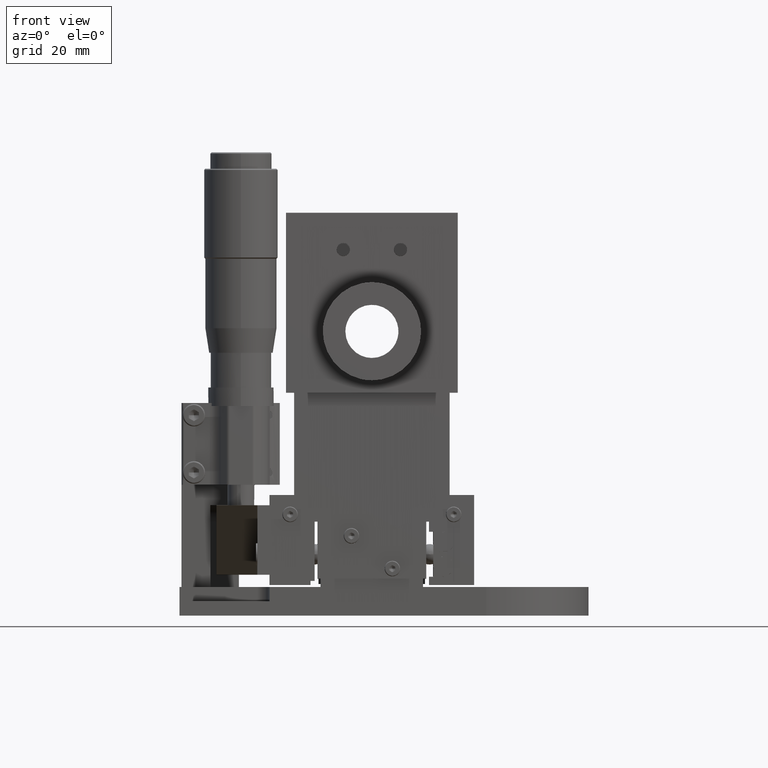
[diagram: clean part render]
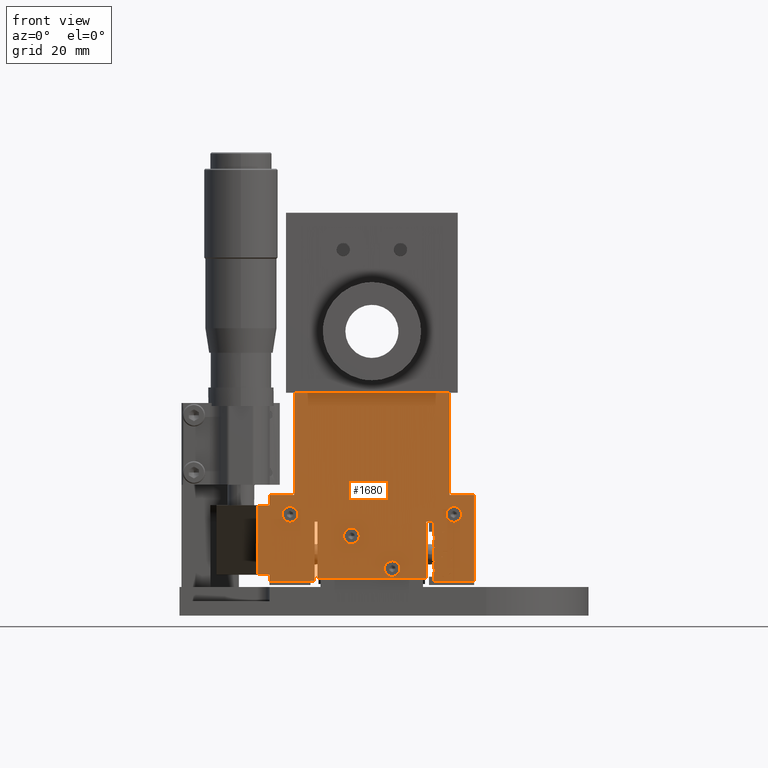
[diagram: same view with one face highlighted and labeled with its STEP entity id]
A machine part, front view. The second image highlights one B-rep face of the part: STEP entity #1680.
In plain terms, the highlighted face is a freeform B-spline surface patch.
Its self-contained STEP definition (entity closure, byte-faithful):
#88=FACE_BOUND('',#3735,.T.);
#89=FACE_BOUND('',#3736,.T.);
#90=FACE_BOUND('',#3737,.T.);
#91=FACE_BOUND('',#3738,.T.);
#243=B_SPLINE_SURFACE_WITH_KNOTS('',1,1,((#41421,#41422),(#41423,#41424)),
 .UNSPECIFIED.,.F.,.F.,.F.,(2,2),(2,2),(-2.32000000000012,24.3200000000001),
(-6.32008011386648,56.3200801138666),.UNSPECIFIED.);
#258=B_SPLINE_SURFACE_WITH_KNOTS('',1,1,((#42293,#42294),(#42295,#42296)),
 .UNSPECIFIED.,.F.,.F.,.F.,(2,2),(2,2),(-0.228094174759248,1.22809417475917),
(-1.12088151995594,11.1208815199555),.UNSPECIFIED.);
#259=B_SPLINE_SURFACE_WITH_KNOTS('',1,1,((#42297,#42298),(#42299,#42300)),
 .UNSPECIFIED.,.F.,.F.,.F.,(2,2),(2,2),(-0.228895580848545,1.22889558084849),
(-1.22088151995484,12.2208815199557),.UNSPECIFIED.);
#260=B_SPLINE_SURFACE_WITH_KNOTS('',1,1,((#42301,#42302),(#42303,#42304)),
 .UNSPECIFIED.,.F.,.F.,.F.,(2,2),(2,2),(-1.22008011386633,0.220080113866411),
(-16.07,1.57),.UNSPECIFIED.);
#261=B_SPLINE_SURFACE_WITH_KNOTS('',1,1,((#42305,#42306),(#42307,#42308)),
 .UNSPECIFIED.,.F.,.F.,.F.,(2,2),(2,2),(-0.22008011386634,1.22008011386641),
(-1.57,16.07),.UNSPECIFIED.);
#273=B_SPLINE_SURFACE_WITH_KNOTS('',1,1,((#42353,#42354),(#42355,#42356)),
 .UNSPECIFIED.,.F.,.F.,.F.,(2,2),(2,2),(-31.3440550220953,31.3433876296961),
(-18.6616864020685,17.6610181176519),.UNSPECIFIED.);
#275=B_SPLINE_SURFACE_WITH_KNOTS('',1,1,((#42361,#42362),(#42363,#42364)),
 .UNSPECIFIED.,.F.,.F.,.F.,(2,2),(2,2),(-0.220080113866338,1.2200801138664),
(-1.52,15.52),.UNSPECIFIED.);
#276=B_SPLINE_SURFACE_WITH_KNOTS('',1,1,((#42365,#42366),(#42367,#42368)),
 .UNSPECIFIED.,.F.,.F.,.F.,(2,2),(2,2),(-1.24139751584154,0.241397515841546),
(-29.3808815199551,2.7808815199559),.UNSPECIFIED.);
#277=B_SPLINE_SURFACE_WITH_KNOTS('',1,1,((#42369,#42370),(#42371,#42372)),
 .UNSPECIFIED.,.F.,.F.,.F.,(2,2),(2,2),(-1.22008011386633,0.220080113866411),
(-15.52,1.52),.UNSPECIFIED.);
#311=B_SPLINE_SURFACE_WITH_KNOTS('',1,1,((#43585,#43586),(#43587,#43588)),
 .UNSPECIFIED.,.F.,.F.,.F.,(2,2),(2,2),(-2.87000000000023,0.370000000000128),
(-56.3200801138664,6.32008011386663),.UNSPECIFIED.);
#312=B_SPLINE_SURFACE_WITH_KNOTS('',1,1,((#43589,#43590),(#43591,#43592)),
 .UNSPECIFIED.,.F.,.F.,.F.,(2,2),(2,2),(-22.3700000000001,-19.13),(-56.3200801138664,
6.32008011386669),.UNSPECIFIED.);
#313=B_SPLINE_SURFACE_WITH_KNOTS('',1,1,((#43593,#43594),(#43595,#43596)),
 .UNSPECIFIED.,.F.,.F.,.F.,(2,2),(2,2),(-14.4448520127018,1.4602167561635),
(-57.3298192706084,5.32315114472272),.UNSPECIFIED.);
#314=B_SPLINE_SURFACE_WITH_KNOTS('',1,1,((#43597,#43598),(#43599,#43600)),
 .UNSPECIFIED.,.F.,.F.,.F.,(2,2),(2,2),(-1.45908143087006,14.4323634344766),
(-5.32981093025254,57.3231503865086),.UNSPECIFIED.);
#315=B_SPLINE_SURFACE_WITH_KNOTS('',1,1,((#43673,#43674),(#43675,#43676)),
 .UNSPECIFIED.,.F.,.F.,.F.,(2,2),(2,2),(-10.3200000000001,10.32),(0.202459560575261,
28.4543946889171),.UNSPECIFIED.);
#324=B_SPLINE_SURFACE_WITH_KNOTS('',1,1,((#43781,#43782),(#43783,#43784)),
 .UNSPECIFIED.,.F.,.F.,.F.,(2,2),(2,2),(-30.1617532305099,30.16175323051),
(-31.3601504183312,31.3601504183314),.UNSPECIFIED.);
#325=B_SPLINE_SURFACE_WITH_KNOTS('',1,1,((#43785,#43786),(#43787,#43788)),
 .UNSPECIFIED.,.F.,.F.,.F.,(2,2),(2,2),(-10.6180599118463,22.0221003158867),
(-34.3179797979799,48.7220202020201),.UNSPECIFIED.);
#326=B_SPLINE_SURFACE_WITH_KNOTS('',1,1,((#43789,#43790),(#43791,#43792)),
 .UNSPECIFIED.,.F.,.F.,.F.,(2,2),(2,2),(-34.3179797979798,48.7220202020202),
(-10.6180599118463,22.0221003158866),.UNSPECIFIED.);
#339=B_SPLINE_SURFACE_WITH_KNOTS('',1,1,((#44237,#44238),(#44239,#44240)),
 .UNSPECIFIED.,.F.,.F.,.F.,(2,2),(2,2),(-17.1278947368444,38.3121052631834),
(-30.3352847922294,33.5048754355035),.UNSPECIFIED.);
#346=B_SPLINE_SURFACE_WITH_KNOTS('',1,1,((#44337,#44338),(#44339,#44340)),
 .UNSPECIFIED.,.F.,.F.,.F.,(2,2),(2,2),(-4.32756129808541,46.3302465922383),
(-1.05374132162779,10.0537413216279),.UNSPECIFIED.);
#1680=ADVANCED_FACE('',(#2668,#88,#89,#90,#91),#339,.T.);
#2668=FACE_OUTER_BOUND('',#3734,.T.);
#3734=EDGE_LOOP('',(#7028,#7029,#7030,#7031,#7032,#7033,#7034,#7035,#7036,
#7037,#7038,#7039,#7040,#7041,#7042,#7043,#7044,#7045,#7046,#7047));
#3735=EDGE_LOOP('',(#7048,#7049));
#3736=EDGE_LOOP('',(#7050,#7051));
#3737=EDGE_LOOP('',(#7052,#7053));
#3738=EDGE_LOOP('',(#7054,#7055));
#7028=ORIENTED_EDGE('',*,*,#26357,.F.);
#7029=ORIENTED_EDGE('',*,*,#26350,.F.);
#7030=ORIENTED_EDGE('',*,*,#26292,.F.);
#7031=ORIENTED_EDGE('',*,*,#26305,.F.);
#7032=ORIENTED_EDGE('',*,*,#26323,.F.);
#7033=ORIENTED_EDGE('',*,*,#26299,.F.);
#7034=ORIENTED_EDGE('',*,*,#26290,.F.);
#7035=ORIENTED_EDGE('',*,*,#25984,.F.);
#7036=ORIENTED_EDGE('',*,*,#25988,.F.);
#7037=ORIENTED_EDGE('',*,*,#26029,.F.);
#7038=ORIENTED_EDGE('',*,*,#26037,.F.);
#7039=ORIENTED_EDGE('',*,*,#26039,.F.);
#7040=ORIENTED_EDGE('',*,*,#26041,.F.);
#7041=ORIENTED_EDGE('',*,*,#26030,.F.);
#7042=ORIENTED_EDGE('',*,*,#25992,.F.);
#7043=ORIENTED_EDGE('',*,*,#25982,.F.);
#7044=ORIENTED_EDGE('',*,*,#25773,.F.);
#7045=ORIENTED_EDGE('',*,*,#26349,.F.);
#7046=ORIENTED_EDGE('',*,*,#26354,.F.);
#7047=ORIENTED_EDGE('',*,*,#26442,.T.);
#7048=ORIENTED_EDGE('',*,*,#26443,.T.);
#7049=ORIENTED_EDGE('',*,*,#26444,.T.);
#7050=ORIENTED_EDGE('',*,*,#25222,.F.);
#7051=ORIENTED_EDGE('',*,*,#25220,.F.);
#7052=ORIENTED_EDGE('',*,*,#26445,.T.);
#7053=ORIENTED_EDGE('',*,*,#26446,.T.);
#7054=ORIENTED_EDGE('',*,*,#25232,.F.);
#7055=ORIENTED_EDGE('',*,*,#25230,.F.);
#9837=(
BOUNDED_CURVE()
B_SPLINE_CURVE(2,(#47929,#47930,#47931,#47932,#47933),.UNSPECIFIED.,.F.,
 .F.)
B_SPLINE_CURVE_WITH_KNOTS((3,2,3),(-5.9690260135084,-2.9845130067542,0.),
 .UNSPECIFIED.)
CURVE()
GEOMETRIC_REPRESENTATION_ITEM()
RATIONAL_B_SPLINE_CURVE((1.,0.707106783820726,1.,0.707106783820726,1.))
REPRESENTATION_ITEM('')
);
#9838=(
BOUNDED_CURVE()
B_SPLINE_CURVE(2,(#47940,#47941,#47942,#47943,#47944),.UNSPECIFIED.,.F.,
 .F.)
B_SPLINE_CURVE_WITH_KNOTS((3,2,3),(-5.9690260135084,-2.9845130067542,0.),
 .UNSPECIFIED.)
CURVE()
GEOMETRIC_REPRESENTATION_ITEM()
RATIONAL_B_SPLINE_CURVE((1.,0.707106783820726,1.,0.707106783820726,1.))
REPRESENTATION_ITEM('')
);
#9847=(
BOUNDED_CURVE()
B_SPLINE_CURVE(2,(#47995,#47996,#47997,#47998,#47999),.UNSPECIFIED.,.F.,
 .F.)
B_SPLINE_CURVE_WITH_KNOTS((3,2,3),(-5.96902607013281,-2.98451339084813,
0.),.UNSPECIFIED.)
CURVE()
GEOMETRIC_REPRESENTATION_ITEM()
RATIONAL_B_SPLINE_CURVE((1.,0.707106897761658,1.,0.707106778552369,1.))
REPRESENTATION_ITEM('')
);
#9848=(
BOUNDED_CURVE()
B_SPLINE_CURVE(2,(#48006,#48007,#48008,#48009,#48010),.UNSPECIFIED.,.F.,
 .F.)
B_SPLINE_CURVE_WITH_KNOTS((3,2,3),(-5.9690260135084,-2.98451265097248,0.),
 .UNSPECIFIED.)
CURVE()
GEOMETRIC_REPRESENTATION_ITEM()
RATIONAL_B_SPLINE_CURVE((1.,0.707106783820726,1.,0.707106903030012,1.))
REPRESENTATION_ITEM('')
);
#10616=(
BOUNDED_CURVE()
B_SPLINE_CURVE(2,(#57966,#57967,#57968,#57969,#57970),.UNSPECIFIED.,.F.,
 .F.)
B_SPLINE_CURVE_WITH_KNOTS((3,2,3),(0.,2.98451265097248,5.9690260135084),
 .UNSPECIFIED.)
CURVE()
GEOMETRIC_REPRESENTATION_ITEM()
RATIONAL_B_SPLINE_CURVE((1.,0.707106903030012,1.,0.707106783820726,1.))
REPRESENTATION_ITEM('')
);
#10617=(
BOUNDED_CURVE()
B_SPLINE_CURVE(2,(#57971,#57972,#57973,#57974,#57975),.UNSPECIFIED.,.F.,
 .F.)
B_SPLINE_CURVE_WITH_KNOTS((3,2,3),(0.,2.98451265097248,5.9690260135084),
 .UNSPECIFIED.)
CURVE()
GEOMETRIC_REPRESENTATION_ITEM()
RATIONAL_B_SPLINE_CURVE((1.,0.707106903030012,1.,0.707106783820726,1.))
REPRESENTATION_ITEM('')
);
#10618=(
BOUNDED_CURVE()
B_SPLINE_CURVE(2,(#57976,#57977,#57978,#57979,#57980),.UNSPECIFIED.,.F.,
 .F.)
B_SPLINE_CURVE_WITH_KNOTS((3,2,3),(0.,2.98451339084813,5.96902607013281),
 .UNSPECIFIED.)
CURVE()
GEOMETRIC_REPRESENTATION_ITEM()
RATIONAL_B_SPLINE_CURVE((1.,0.707106778552369,1.,0.707106897761658,1.))
REPRESENTATION_ITEM('')
);
#10619=(
BOUNDED_CURVE()
B_SPLINE_CURVE(2,(#57981,#57982,#57983,#57984,#57985),.UNSPECIFIED.,.F.,
 .F.)
B_SPLINE_CURVE_WITH_KNOTS((3,2,3),(0.,2.98451339084813,5.96902607013281),
 .UNSPECIFIED.)
CURVE()
GEOMETRIC_REPRESENTATION_ITEM()
RATIONAL_B_SPLINE_CURVE((1.,0.707106778552369,1.,0.707106897761658,1.))
REPRESENTATION_ITEM('')
);
#10620=(
BOUNDED_CURVE()
B_SPLINE_CURVE(2,(#57986,#57987,#57988,#57989,#57990),.UNSPECIFIED.,.F.,
 .F.)
B_SPLINE_CURVE_WITH_KNOTS((3,2,3),(-5.9690260135084,-2.9845130067542,0.),
 .UNSPECIFIED.)
CURVE()
GEOMETRIC_REPRESENTATION_ITEM()
RATIONAL_B_SPLINE_CURVE((1.,0.707106783820726,1.,0.707106783820726,1.))
REPRESENTATION_ITEM('')
);
#10621=(
BOUNDED_CURVE()
B_SPLINE_CURVE(2,(#57991,#57992,#57993,#57994,#57995),.UNSPECIFIED.,.F.,
 .F.)
B_SPLINE_CURVE_WITH_KNOTS((3,2,3),(-5.9690260135084,-2.9845130067542,0.),
 .UNSPECIFIED.)
CURVE()
GEOMETRIC_REPRESENTATION_ITEM()
RATIONAL_B_SPLINE_CURVE((1.,0.707106783820726,1.,0.707106783820726,1.))
REPRESENTATION_ITEM('')
);
#10622=(
BOUNDED_CURVE()
B_SPLINE_CURVE(2,(#57996,#57997,#57998,#57999,#58000),.UNSPECIFIED.,.F.,
 .F.)
B_SPLINE_CURVE_WITH_KNOTS((3,2,3),(0.,2.98451339084813,5.96902607013281),
 .UNSPECIFIED.)
CURVE()
GEOMETRIC_REPRESENTATION_ITEM()
RATIONAL_B_SPLINE_CURVE((1.,0.707106778552369,1.,0.707106897761658,1.))
REPRESENTATION_ITEM('')
);
#10623=(
BOUNDED_CURVE()
B_SPLINE_CURVE(2,(#58001,#58002,#58003,#58004,#58005),.UNSPECIFIED.,.F.,
 .F.)
B_SPLINE_CURVE_WITH_KNOTS((3,2,3),(0.,2.98451339084813,5.96902607013281),
 .UNSPECIFIED.)
CURVE()
GEOMETRIC_REPRESENTATION_ITEM()
RATIONAL_B_SPLINE_CURVE((1.,0.707106778552369,1.,0.707106897761658,1.))
REPRESENTATION_ITEM('')
);
#10624=(
BOUNDED_CURVE()
B_SPLINE_CURVE(2,(#58006,#58007,#58008,#58009,#58010),.UNSPECIFIED.,.F.,
 .F.)
B_SPLINE_CURVE_WITH_KNOTS((3,2,3),(0.,2.98451265097248,5.9690260135084),
 .UNSPECIFIED.)
CURVE()
GEOMETRIC_REPRESENTATION_ITEM()
RATIONAL_B_SPLINE_CURVE((1.,0.707106903030012,1.,0.707106783820726,1.))
REPRESENTATION_ITEM('')
);
#10625=(
BOUNDED_CURVE()
B_SPLINE_CURVE(2,(#58011,#58012,#58013,#58014,#58015),.UNSPECIFIED.,.F.,
 .F.)
B_SPLINE_CURVE_WITH_KNOTS((3,2,3),(0.,2.98451265097248,5.9690260135084),
 .UNSPECIFIED.)
CURVE()
GEOMETRIC_REPRESENTATION_ITEM()
RATIONAL_B_SPLINE_CURVE((1.,0.707106903030012,1.,0.707106783820726,1.))
REPRESENTATION_ITEM('')
);
#10626=(
BOUNDED_CURVE()
B_SPLINE_CURVE(2,(#58016,#58017,#58018,#58019,#58020),.UNSPECIFIED.,.F.,
 .F.)
B_SPLINE_CURVE_WITH_KNOTS((3,2,3),(-5.9690260135084,-2.98451265097248,0.),
 .UNSPECIFIED.)
CURVE()
GEOMETRIC_REPRESENTATION_ITEM()
RATIONAL_B_SPLINE_CURVE((1.,0.707106783820726,1.,0.707106903030012,1.))
REPRESENTATION_ITEM('')
);
#10627=(
BOUNDED_CURVE()
B_SPLINE_CURVE(2,(#58021,#58022,#58023,#58024,#58025),.UNSPECIFIED.,.F.,
 .F.)
B_SPLINE_CURVE_WITH_KNOTS((3,2,3),(-5.96902607013281,-2.98451339084813,
0.),.UNSPECIFIED.)
CURVE()
GEOMETRIC_REPRESENTATION_ITEM()
RATIONAL_B_SPLINE_CURVE((1.,0.707106897761658,1.,0.707106778552369,1.))
REPRESENTATION_ITEM('')
);
#12031=PCURVE('',#35757,#17321);
#12033=PCURVE('',#35758,#17323);
#12043=PCURVE('',#35759,#17333);
#12045=PCURVE('',#35760,#17335);
#12968=PCURVE('',#243,#18258);
#13265=PCURVE('',#258,#18555);
#13269=PCURVE('',#259,#18559);
#13274=PCURVE('',#260,#18564);
#13279=PCURVE('',#261,#18569);
#13359=PCURVE('',#273,#18649);
#13371=PCURVE('',#273,#18661);
#13425=PCURVE('',#275,#18715);
#13429=PCURVE('',#276,#18719);
#13435=PCURVE('',#277,#18725);
#13965=PCURVE('',#311,#19255);
#13967=PCURVE('',#312,#19257);
#13977=PCURVE('',#313,#19267);
#13983=PCURVE('',#314,#19273);
#14008=PCURVE('',#315,#19298);
#14075=PCURVE('',#324,#19365);
#14079=PCURVE('',#324,#19369);
#14099=PCURVE('',#325,#19389);
#14104=PCURVE('',#326,#19394);
#14290=PCURVE('',#339,#19580);
#14291=PCURVE('',#339,#19581);
#14292=PCURVE('',#339,#19582);
#14293=PCURVE('',#339,#19583);
#14294=PCURVE('',#339,#19584);
#14295=PCURVE('',#339,#19585);
#14296=PCURVE('',#339,#19586);
#14297=PCURVE('',#339,#19587);
#14298=PCURVE('',#339,#19588);
#14299=PCURVE('',#339,#19589);
#14300=PCURVE('',#339,#19590);
#14301=PCURVE('',#339,#19591);
#14302=PCURVE('',#339,#19592);
#14303=PCURVE('',#339,#19593);
#14304=PCURVE('',#339,#19594);
#14305=PCURVE('',#339,#19595);
#14306=PCURVE('',#339,#19596);
#14307=PCURVE('',#339,#19597);
#14308=PCURVE('',#339,#19598);
#14309=PCURVE('',#339,#19599);
#14310=PCURVE('',#339,#19600);
#14311=PCURVE('',#339,#19601);
#14312=PCURVE('',#339,#19602);
#14313=PCURVE('',#339,#19603);
#14314=PCURVE('',#339,#19604);
#14315=PCURVE('',#339,#19605);
#14316=PCURVE('',#339,#19606);
#14317=PCURVE('',#339,#19607);
#14371=PCURVE('',#346,#19661);
#14973=PCURVE('',#36013,#20263);
#14975=PCURVE('',#36014,#20265);
#14983=PCURVE('',#36015,#20273);
#14985=PCURVE('',#36016,#20275);
#17321=DEFINITIONAL_REPRESENTATION('',(#28221),#78139);
#17323=DEFINITIONAL_REPRESENTATION('',(#28224),#78139);
#17333=DEFINITIONAL_REPRESENTATION('',(#28233),#78139);
#17335=DEFINITIONAL_REPRESENTATION('',(#28236),#78139);
#18258=DEFINITIONAL_REPRESENTATION('',(#29386),#78139);
#18555=DEFINITIONAL_REPRESENTATION('',(#29781),#78139);
#18559=DEFINITIONAL_REPRESENTATION('',(#29787),#78139);
#18564=DEFINITIONAL_REPRESENTATION('',(#29796),#78139);
#18569=DEFINITIONAL_REPRESENTATION('',(#29805),#78139);
#18649=DEFINITIONAL_REPRESENTATION('',(#29916),#78139);
#18661=DEFINITIONAL_REPRESENTATION('',(#29929),#78139);
#18715=DEFINITIONAL_REPRESENTATION('',(#29954),#78139);
#18719=DEFINITIONAL_REPRESENTATION('',(#29960),#78139);
#18725=DEFINITIONAL_REPRESENTATION('',(#29968),#78139);
#19255=DEFINITIONAL_REPRESENTATION('',(#30559),#78139);
#19257=DEFINITIONAL_REPRESENTATION('',(#30563),#78139);
#19267=DEFINITIONAL_REPRESENTATION('',(#30580),#78139);
#19273=DEFINITIONAL_REPRESENTATION('',(#30592),#78139);
#19298=DEFINITIONAL_REPRESENTATION('',(#30623),#78139);
#19365=DEFINITIONAL_REPRESENTATION('',(#30695),#78139);
#19369=DEFINITIONAL_REPRESENTATION('',(#30700),#78139);
#19389=DEFINITIONAL_REPRESENTATION('',(#30709),#78139);
#19394=DEFINITIONAL_REPRESENTATION('',(#30717),#78139);
#19580=DEFINITIONAL_REPRESENTATION('',(#30923),#78139);
#19581=DEFINITIONAL_REPRESENTATION('',(#30924),#78139);
#19582=DEFINITIONAL_REPRESENTATION('',(#30925),#78139);
#19583=DEFINITIONAL_REPRESENTATION('',(#30926),#78139);
#19584=DEFINITIONAL_REPRESENTATION('',(#30927),#78139);
#19585=DEFINITIONAL_REPRESENTATION('',(#30928),#78139);
#19586=DEFINITIONAL_REPRESENTATION('',(#30929),#78139);
#19587=DEFINITIONAL_REPRESENTATION('',(#30930),#78139);
#19588=DEFINITIONAL_REPRESENTATION('',(#30931),#78139);
#19589=DEFINITIONAL_REPRESENTATION('',(#30932),#78139);
#19590=DEFINITIONAL_REPRESENTATION('',(#30933),#78139);
#19591=DEFINITIONAL_REPRESENTATION('',(#30934),#78139);
#19592=DEFINITIONAL_REPRESENTATION('',(#30935),#78139);
#19593=DEFINITIONAL_REPRESENTATION('',(#30936),#78139);
#19594=DEFINITIONAL_REPRESENTATION('',(#30937),#78139);
#19595=DEFINITIONAL_REPRESENTATION('',(#30938),#78139);
#19596=DEFINITIONAL_REPRESENTATION('',(#30939),#78139);
#19597=DEFINITIONAL_REPRESENTATION('',(#30940),#78139);
#19598=DEFINITIONAL_REPRESENTATION('',(#30941),#78139);
#19599=DEFINITIONAL_REPRESENTATION('',(#30943),#78139);
#19600=DEFINITIONAL_REPRESENTATION('',(#10617),#78139);
#19601=DEFINITIONAL_REPRESENTATION('',(#10619),#78139);
#19602=DEFINITIONAL_REPRESENTATION('',(#10620),#78139);
#19603=DEFINITIONAL_REPRESENTATION('',(#10621),#78139);
#19604=DEFINITIONAL_REPRESENTATION('',(#10623),#78139);
#19605=DEFINITIONAL_REPRESENTATION('',(#10625),#78139);
#19606=DEFINITIONAL_REPRESENTATION('',(#10626),#78139);
#19607=DEFINITIONAL_REPRESENTATION('',(#10627),#78139);
#19661=DEFINITIONAL_REPRESENTATION('',(#31015),#78139);
#20263=DEFINITIONAL_REPRESENTATION('',(#31741),#78139);
#20265=DEFINITIONAL_REPRESENTATION('',(#31744),#78139);
#20273=DEFINITIONAL_REPRESENTATION('',(#31753),#78139);
#20275=DEFINITIONAL_REPRESENTATION('',(#31756),#78139);
#22441=SURFACE_CURVE('',#9837,(#12031,#14313),.PCURVE_S1.);
#22443=SURFACE_CURVE('',#9838,(#12033,#14312),.PCURVE_S1.);
#22451=SURFACE_CURVE('',#9847,(#12043,#14317),.PCURVE_S1.);
#22453=SURFACE_CURVE('',#9848,(#12045,#14316),.PCURVE_S1.);
#22994=SURFACE_CURVE('',#29385,(#12968,#14306),.PCURVE_S1.);
#23203=SURFACE_CURVE('',#29780,(#13265,#14305),.PCURVE_S1.);
#23205=SURFACE_CURVE('',#29786,(#13269,#14297),.PCURVE_S1.);
#23209=SURFACE_CURVE('',#29795,(#13274,#14298),.PCURVE_S1.);
#23213=SURFACE_CURVE('',#29804,(#13279,#14304),.PCURVE_S1.);
#23250=SURFACE_CURVE('',#29915,(#13359,#14299),.PCURVE_S1.);
#23251=SURFACE_CURVE('',#29928,(#13371,#14303),.PCURVE_S1.);
#23258=SURFACE_CURVE('',#29953,(#13425,#14300),.PCURVE_S1.);
#23260=SURFACE_CURVE('',#29959,(#13429,#14301),.PCURVE_S1.);
#23262=SURFACE_CURVE('',#29967,(#13435,#14302),.PCURVE_S1.);
#23511=SURFACE_CURVE('',#30558,(#13965,#14296),.PCURVE_S1.);
#23513=SURFACE_CURVE('',#30562,(#13967,#14292),.PCURVE_S1.);
#23520=SURFACE_CURVE('',#30579,(#13977,#14295),.PCURVE_S1.);
#23526=SURFACE_CURVE('',#30591,(#13983,#14293),.PCURVE_S1.);
#23544=SURFACE_CURVE('',#30622,(#14008,#14294),.PCURVE_S1.);
#23570=SURFACE_CURVE('',#30694,(#14075,#14307),.PCURVE_S1.);
#23571=SURFACE_CURVE('',#30699,(#14079,#14291),.PCURVE_S1.);
#23575=SURFACE_CURVE('',#30708,(#14099,#14308),.PCURVE_S1.);
#23578=SURFACE_CURVE('',#30716,(#14104,#14290),.PCURVE_S1.);
#23663=SURFACE_CURVE('',#30942,(#14309,#14371),.PCURVE_S1.);
#23664=SURFACE_CURVE('',#10616,(#14310,#14985),.PCURVE_S1.);
#23665=SURFACE_CURVE('',#10618,(#14311,#14983),.PCURVE_S1.);
#23666=SURFACE_CURVE('',#10622,(#14314,#14975),.PCURVE_S1.);
#23667=SURFACE_CURVE('',#10624,(#14315,#14973),.PCURVE_S1.);
#25220=EDGE_CURVE('',#34012,#34011,#22441,.T.);
#25222=EDGE_CURVE('',#34011,#34012,#22443,.T.);
#25230=EDGE_CURVE('',#34020,#34019,#22451,.T.);
#25232=EDGE_CURVE('',#34019,#34020,#22453,.T.);
#25773=EDGE_CURVE('',#34394,#34395,#22994,.T.);
#25982=EDGE_CURVE('',#34395,#34537,#23203,.T.);
#25984=EDGE_CURVE('',#34538,#34539,#23205,.T.);
#25988=EDGE_CURVE('',#34541,#34538,#23209,.T.);
#25992=EDGE_CURVE('',#34537,#34544,#23213,.T.);
#26029=EDGE_CURVE('',#34565,#34541,#23250,.T.);
#26030=EDGE_CURVE('',#34544,#34563,#23251,.T.);
#26037=EDGE_CURVE('',#34568,#34565,#23258,.T.);
#26039=EDGE_CURVE('',#34569,#34568,#23260,.T.);
#26041=EDGE_CURVE('',#34563,#34569,#23262,.T.);
#26290=EDGE_CURVE('',#34539,#34724,#23511,.T.);
#26292=EDGE_CURVE('',#34725,#34726,#23513,.T.);
#26299=EDGE_CURVE('',#34724,#34727,#23520,.T.);
#26305=EDGE_CURVE('',#34736,#34725,#23526,.T.);
#26323=EDGE_CURVE('',#34727,#34736,#23544,.T.);
#26349=EDGE_CURVE('',#34766,#34394,#23570,.T.);
#26350=EDGE_CURVE('',#34726,#34761,#23571,.T.);
#26354=EDGE_CURVE('',#34774,#34766,#23575,.T.);
#26357=EDGE_CURVE('',#34761,#34776,#23578,.T.);
#26442=EDGE_CURVE('',#34774,#34776,#23663,.T.);
#26443=EDGE_CURVE('',#34829,#34828,#23664,.T.);
#26444=EDGE_CURVE('',#34828,#34829,#23665,.T.);
#26445=EDGE_CURVE('',#34831,#34830,#23666,.T.);
#26446=EDGE_CURVE('',#34830,#34831,#23667,.T.);
#28221=B_SPLINE_CURVE_WITH_KNOTS('',1,(#47934,#47935),.UNSPECIFIED.,.F.,
 .F.,(2,2),(-5.9690260135084,0.),.UNSPECIFIED.);
#28224=B_SPLINE_CURVE_WITH_KNOTS('',1,(#47945,#47946),.UNSPECIFIED.,.F.,
 .F.,(2,2),(-5.9690260135084,0.),.UNSPECIFIED.);
#28233=B_SPLINE_CURVE_WITH_KNOTS('',1,(#48000,#48001),.UNSPECIFIED.,.F.,
 .F.,(2,2),(-5.96902607013281,0.),.UNSPECIFIED.);
#28236=B_SPLINE_CURVE_WITH_KNOTS('',1,(#48011,#48012),.UNSPECIFIED.,.F.,
 .F.,(2,2),(-5.9690260135084,0.),.UNSPECIFIED.);
#29385=B_SPLINE_CURVE_WITH_KNOTS('',1,(#52511,#52512),.UNSPECIFIED.,.F.,
 .F.,(2,2),(0.,21.),.UNSPECIFIED.);
#29386=B_SPLINE_CURVE_WITH_KNOTS('',1,(#52513,#52514),.UNSPECIFIED.,.F.,
 .F.,(2,2),(0.,21.),.UNSPECIFIED.);
#29780=B_SPLINE_CURVE_WITH_KNOTS('',1,(#53908,#53909),.UNSPECIFIED.,.F.,
 .F.,(2,2),(0.,9.99999999999992),.UNSPECIFIED.);
#29781=B_SPLINE_CURVE_WITH_KNOTS('',1,(#53910,#53911),.UNSPECIFIED.,.F.,
 .F.,(2,2),(0.,9.99999999999992),.UNSPECIFIED.);
#29786=B_SPLINE_CURVE_WITH_KNOTS('',1,(#53920,#53921),.UNSPECIFIED.,.F.,
 .F.,(2,2),(0.,11.0000000000001),.UNSPECIFIED.);
#29787=B_SPLINE_CURVE_WITH_KNOTS('',1,(#53922,#53923),.UNSPECIFIED.,.F.,
 .F.,(2,2),(0.,11.0000000000001),.UNSPECIFIED.);
#29795=B_SPLINE_CURVE_WITH_KNOTS('',1,(#53938,#53939),.UNSPECIFIED.,.F.,
 .F.,(2,2),(0.,14.5),.UNSPECIFIED.);
#29796=B_SPLINE_CURVE_WITH_KNOTS('',1,(#53940,#53941),.UNSPECIFIED.,.F.,
 .F.,(2,2),(0.,14.5),.UNSPECIFIED.);
#29804=B_SPLINE_CURVE_WITH_KNOTS('',1,(#53956,#53957),.UNSPECIFIED.,.F.,
 .F.,(2,2),(0.,14.5),.UNSPECIFIED.);
#29805=B_SPLINE_CURVE_WITH_KNOTS('',1,(#53958,#53959),.UNSPECIFIED.,.F.,
 .F.,(2,2),(0.,14.5),.UNSPECIFIED.);
#29915=B_SPLINE_CURVE_WITH_KNOTS('',1,(#54208,#54209),.UNSPECIFIED.,.F.,
 .F.,(2,2),(0.,0.699999999999925),.UNSPECIFIED.);
#29916=B_SPLINE_CURVE_WITH_KNOTS('',1,(#54210,#54211),.UNSPECIFIED.,.F.,
 .F.,(2,2),(0.,0.699999999999925),.UNSPECIFIED.);
#29928=B_SPLINE_CURVE_WITH_KNOTS('',1,(#54234,#54235),.UNSPECIFIED.,.F.,
 .F.,(2,2),(0.,1.70000000000014),.UNSPECIFIED.);
#29929=B_SPLINE_CURVE_WITH_KNOTS('',1,(#54236,#54237),.UNSPECIFIED.,.F.,
 .F.,(2,2),(0.,1.70000000000014),.UNSPECIFIED.);
#29953=B_SPLINE_CURVE_WITH_KNOTS('',1,(#54440,#54441),.UNSPECIFIED.,.F.,
 .F.,(2,2),(0.,14.),.UNSPECIFIED.);
#29954=B_SPLINE_CURVE_WITH_KNOTS('',1,(#54442,#54443),.UNSPECIFIED.,.F.,
 .F.,(2,2),(0.,14.),.UNSPECIFIED.);
#29959=B_SPLINE_CURVE_WITH_KNOTS('',1,(#54452,#54453),.UNSPECIFIED.,.F.,
 .F.,(2,2),(0.,26.6000000000006),.UNSPECIFIED.);
#29960=B_SPLINE_CURVE_WITH_KNOTS('',1,(#54454,#54455),.UNSPECIFIED.,.F.,
 .F.,(2,2),(0.,26.6000000000006),.UNSPECIFIED.);
#29967=B_SPLINE_CURVE_WITH_KNOTS('',1,(#54468,#54469),.UNSPECIFIED.,.F.,
 .F.,(2,2),(0.,14.),.UNSPECIFIED.);
#29968=B_SPLINE_CURVE_WITH_KNOTS('',1,(#54470,#54471),.UNSPECIFIED.,.F.,
 .F.,(2,2),(0.,14.),.UNSPECIFIED.);
#30558=B_SPLINE_CURVE_WITH_KNOTS('',1,(#56712,#56713),.UNSPECIFIED.,.F.,
 .F.,(2,2),(0.,1.5000000000001),.UNSPECIFIED.);
#30559=B_SPLINE_CURVE_WITH_KNOTS('',1,(#56714,#56715),.UNSPECIFIED.,.F.,
 .F.,(2,2),(0.,1.5000000000001),.UNSPECIFIED.);
#30562=B_SPLINE_CURVE_WITH_KNOTS('',1,(#56720,#56721),.UNSPECIFIED.,.F.,
 .F.,(2,2),(0.,2.4999999999999),.UNSPECIFIED.);
#30563=B_SPLINE_CURVE_WITH_KNOTS('',1,(#56722,#56723),.UNSPECIFIED.,.F.,
 .F.,(2,2),(0.,2.4999999999999),.UNSPECIFIED.);
#30579=B_SPLINE_CURVE_WITH_KNOTS('',1,(#56754,#56755),.UNSPECIFIED.,.F.,
 .F.,(2,2),(0.,2.99999999999956),.UNSPECIFIED.);
#30580=B_SPLINE_CURVE_WITH_KNOTS('',1,(#56756,#56757),.UNSPECIFIED.,.F.,
 .F.,(2,2),(0.,2.99999999999956),.UNSPECIFIED.);
#30591=B_SPLINE_CURVE_WITH_KNOTS('',1,(#56778,#56779),.UNSPECIFIED.,.F.,
 .F.,(2,2),(-2.99999999999956,0.),.UNSPECIFIED.);
#30592=B_SPLINE_CURVE_WITH_KNOTS('',1,(#56780,#56781),.UNSPECIFIED.,.F.,
 .F.,(2,2),(-2.99999999999956,0.),.UNSPECIFIED.);
#30622=B_SPLINE_CURVE_WITH_KNOTS('',1,(#56884,#56885),.UNSPECIFIED.,.F.,
 .F.,(2,2),(-17.,0.),.UNSPECIFIED.);
#30623=B_SPLINE_CURVE_WITH_KNOTS('',1,(#56886,#56887),.UNSPECIFIED.,.F.,
 .F.,(2,2),(-17.,0.),.UNSPECIFIED.);
#30694=B_SPLINE_CURVE_WITH_KNOTS('',1,(#57127,#57128),.UNSPECIFIED.,.F.,
 .F.,(2,2),(0.,6.00000000000018),.UNSPECIFIED.);
#30695=B_SPLINE_CURVE_WITH_KNOTS('',1,(#57129,#57130),.UNSPECIFIED.,.F.,
 .F.,(2,2),(0.,6.00000000000018),.UNSPECIFIED.);
#30699=B_SPLINE_CURVE_WITH_KNOTS('',1,(#57137,#57138),.UNSPECIFIED.,.F.,
 .F.,(2,2),(0.,6.00000000000018),.UNSPECIFIED.);
#30700=B_SPLINE_CURVE_WITH_KNOTS('',1,(#57139,#57140),.UNSPECIFIED.,.F.,
 .F.,(2,2),(0.,6.00000000000018),.UNSPECIFIED.);
#30708=B_SPLINE_CURVE_WITH_KNOTS('',1,(#57220,#57221),.UNSPECIFIED.,.F.,
 .F.,(2,2),(-24.9999999999697,0.),.UNSPECIFIED.);
#30709=B_SPLINE_CURVE_WITH_KNOTS('',1,(#57222,#57223),.UNSPECIFIED.,.F.,
 .F.,(2,2),(-24.9999999999697,0.),.UNSPECIFIED.);
#30716=B_SPLINE_CURVE_WITH_KNOTS('',1,(#57236,#57237),.UNSPECIFIED.,.F.,
 .F.,(2,2),(-25.0000000000231,0.),.UNSPECIFIED.);
#30717=B_SPLINE_CURVE_WITH_KNOTS('',1,(#57238,#57239),.UNSPECIFIED.,.F.,
 .F.,(2,2),(-25.0000000000231,0.),.UNSPECIFIED.);
#30923=B_SPLINE_CURVE_WITH_KNOTS('',1,(#57924,#57925),.UNSPECIFIED.,.F.,
 .F.,(2,2),(-25.0000000000231,0.),.UNSPECIFIED.);
#30924=B_SPLINE_CURVE_WITH_KNOTS('',1,(#57926,#57927),.UNSPECIFIED.,.F.,
 .F.,(2,2),(0.,6.00000000000018),.UNSPECIFIED.);
#30925=B_SPLINE_CURVE_WITH_KNOTS('',1,(#57928,#57929),.UNSPECIFIED.,.F.,
 .F.,(2,2),(0.,2.4999999999999),.UNSPECIFIED.);
#30926=B_SPLINE_CURVE_WITH_KNOTS('',1,(#57930,#57931),.UNSPECIFIED.,.F.,
 .F.,(2,2),(-2.99999999999956,0.),.UNSPECIFIED.);
#30927=B_SPLINE_CURVE_WITH_KNOTS('',1,(#57932,#57933),.UNSPECIFIED.,.F.,
 .F.,(2,2),(-17.,0.),.UNSPECIFIED.);
#30928=B_SPLINE_CURVE_WITH_KNOTS('',1,(#57934,#57935),.UNSPECIFIED.,.F.,
 .F.,(2,2),(0.,2.99999999999956),.UNSPECIFIED.);
#30929=B_SPLINE_CURVE_WITH_KNOTS('',1,(#57936,#57937),.UNSPECIFIED.,.F.,
 .F.,(2,2),(0.,1.5000000000001),.UNSPECIFIED.);
#30930=B_SPLINE_CURVE_WITH_KNOTS('',1,(#57938,#57939),.UNSPECIFIED.,.F.,
 .F.,(2,2),(0.,11.0000000000001),.UNSPECIFIED.);
#30931=B_SPLINE_CURVE_WITH_KNOTS('',1,(#57940,#57941),.UNSPECIFIED.,.F.,
 .F.,(2,2),(0.,14.5),.UNSPECIFIED.);
#30932=B_SPLINE_CURVE_WITH_KNOTS('',1,(#57942,#57943),.UNSPECIFIED.,.F.,
 .F.,(2,2),(0.,0.699999999999925),.UNSPECIFIED.);
#30933=B_SPLINE_CURVE_WITH_KNOTS('',1,(#57944,#57945),.UNSPECIFIED.,.F.,
 .F.,(2,2),(0.,14.),.UNSPECIFIED.);
#30934=B_SPLINE_CURVE_WITH_KNOTS('',1,(#57946,#57947),.UNSPECIFIED.,.F.,
 .F.,(2,2),(0.,26.6000000000006),.UNSPECIFIED.);
#30935=B_SPLINE_CURVE_WITH_KNOTS('',1,(#57948,#57949),.UNSPECIFIED.,.F.,
 .F.,(2,2),(0.,14.),.UNSPECIFIED.);
#30936=B_SPLINE_CURVE_WITH_KNOTS('',1,(#57950,#57951),.UNSPECIFIED.,.F.,
 .F.,(2,2),(0.,1.70000000000014),.UNSPECIFIED.);
#30937=B_SPLINE_CURVE_WITH_KNOTS('',1,(#57952,#57953),.UNSPECIFIED.,.F.,
 .F.,(2,2),(0.,14.5),.UNSPECIFIED.);
#30938=B_SPLINE_CURVE_WITH_KNOTS('',1,(#57954,#57955),.UNSPECIFIED.,.F.,
 .F.,(2,2),(0.,9.99999999999992),.UNSPECIFIED.);
#30939=B_SPLINE_CURVE_WITH_KNOTS('',1,(#57956,#57957),.UNSPECIFIED.,.F.,
 .F.,(2,2),(0.,21.),.UNSPECIFIED.);
#30940=B_SPLINE_CURVE_WITH_KNOTS('',1,(#57958,#57959),.UNSPECIFIED.,.F.,
 .F.,(2,2),(0.,6.00000000000018),.UNSPECIFIED.);
#30941=B_SPLINE_CURVE_WITH_KNOTS('',1,(#57960,#57961),.UNSPECIFIED.,.F.,
 .F.,(2,2),(-24.9999999999697,0.),.UNSPECIFIED.);
#30942=B_SPLINE_CURVE_WITH_KNOTS('',1,(#57962,#57963),.UNSPECIFIED.,.F.,
 .F.,(2,2),(0.,38.0000000000003),.UNSPECIFIED.);
#30943=B_SPLINE_CURVE_WITH_KNOTS('',1,(#57964,#57965),.UNSPECIFIED.,.F.,
 .F.,(2,2),(0.,38.0000000000003),.UNSPECIFIED.);
#31015=B_SPLINE_CURVE_WITH_KNOTS('',1,(#58230,#58231),.UNSPECIFIED.,.F.,
 .F.,(2,2),(0.,38.0000000000003),.UNSPECIFIED.);
#31741=B_SPLINE_CURVE_WITH_KNOTS('',1,(#60324,#60325),.UNSPECIFIED.,.F.,
 .F.,(2,2),(0.,5.9690260135084),.UNSPECIFIED.);
#31744=B_SPLINE_CURVE_WITH_KNOTS('',1,(#60330,#60331),.UNSPECIFIED.,.F.,
 .F.,(2,2),(0.,5.96902607013281),.UNSPECIFIED.);
#31753=B_SPLINE_CURVE_WITH_KNOTS('',1,(#60360,#60361),.UNSPECIFIED.,.F.,
 .F.,(2,2),(0.,5.96902607013281),.UNSPECIFIED.);
#31756=B_SPLINE_CURVE_WITH_KNOTS('',1,(#60366,#60367),.UNSPECIFIED.,.F.,
 .F.,(2,2),(0.,5.9690260135084),.UNSPECIFIED.);
#34011=VERTEX_POINT('',#45812);
#34012=VERTEX_POINT('',#45813);
#34019=VERTEX_POINT('',#45820);
#34020=VERTEX_POINT('',#45821);
#34394=VERTEX_POINT('',#46195);
#34395=VERTEX_POINT('',#46196);
#34537=VERTEX_POINT('',#46338);
#34538=VERTEX_POINT('',#46339);
#34539=VERTEX_POINT('',#46340);
#34541=VERTEX_POINT('',#46342);
#34544=VERTEX_POINT('',#46345);
#34563=VERTEX_POINT('',#46364);
#34565=VERTEX_POINT('',#46366);
#34568=VERTEX_POINT('',#46369);
#34569=VERTEX_POINT('',#46370);
#34724=VERTEX_POINT('',#46525);
#34725=VERTEX_POINT('',#46526);
#34726=VERTEX_POINT('',#46527);
#34727=VERTEX_POINT('',#46528);
#34736=VERTEX_POINT('',#46537);
#34761=VERTEX_POINT('',#46562);
#34766=VERTEX_POINT('',#46567);
#34774=VERTEX_POINT('',#46575);
#34776=VERTEX_POINT('',#46577);
#34828=VERTEX_POINT('',#46629);
#34829=VERTEX_POINT('',#46630);
#34830=VERTEX_POINT('',#46631);
#34831=VERTEX_POINT('',#46632);
#35757=(
BOUNDED_SURFACE()
B_SPLINE_SURFACE(2,1,((#39670,#39671),(#39672,#39673),(#39674,#39675),(#39676,
#39677),(#39678,#39679),(#39680,#39681),(#39682,#39683),(#39684,#39685),
(#39686,#39687)),.UNSPECIFIED.,.T.,.F.,.F.)
B_SPLINE_SURFACE_WITH_KNOTS((3,2,2,2,3),(2,2),(0.,1.5707963267949,3.14159265358979,
4.71238898038469,6.28318530717959),(0.,2.40625091404749),.UNSPECIFIED.)
GEOMETRIC_REPRESENTATION_ITEM()
RATIONAL_B_SPLINE_SURFACE(((1.,1.),(0.707106781186548,0.707106781186548),
(1.,1.),(0.707106781186548,0.707106781186548),(1.,1.),(0.707106781186548,
0.707106781186548),(1.,1.),(0.707106781186548,0.707106781186548),(1.,1.)))
REPRESENTATION_ITEM('')
SURFACE()
);
#35758=(
BOUNDED_SURFACE()
B_SPLINE_SURFACE(2,1,((#39688,#39689),(#39690,#39691),(#39692,#39693),(#39694,
#39695),(#39696,#39697),(#39698,#39699),(#39700,#39701),(#39702,#39703),
(#39704,#39705)),.UNSPECIFIED.,.T.,.F.,.F.)
B_SPLINE_SURFACE_WITH_KNOTS((3,2,2,2,3),(2,2),(0.,1.5707963267949,3.14159265358979,
4.71238898038469,6.28318530717959),(0.,2.40625091404749),.UNSPECIFIED.)
GEOMETRIC_REPRESENTATION_ITEM()
RATIONAL_B_SPLINE_SURFACE(((1.,1.),(0.707106781186548,0.707106781186548),
(1.,1.),(0.707106781186548,0.707106781186548),(1.,1.),(0.707106781186548,
0.707106781186548),(1.,1.),(0.707106781186548,0.707106781186548),(1.,1.)))
REPRESENTATION_ITEM('')
SURFACE()
);
#35759=(
BOUNDED_SURFACE()
B_SPLINE_SURFACE(2,1,((#39710,#39711),(#39712,#39713),(#39714,#39715),(#39716,
#39717),(#39718,#39719),(#39720,#39721),(#39722,#39723),(#39724,#39725),
(#39726,#39727)),.UNSPECIFIED.,.T.,.F.,.F.)
B_SPLINE_SURFACE_WITH_KNOTS((3,2,2,2,3),(2,2),(0.,1.5707963267949,3.14159265358979,
4.71238898038469,6.28318530717959),(0.,2.40625091404972),.UNSPECIFIED.)
GEOMETRIC_REPRESENTATION_ITEM()
RATIONAL_B_SPLINE_SURFACE(((1.,1.),(0.707106781186548,0.707106781186548),
(1.,1.),(0.707106781186548,0.707106781186548),(1.,1.),(0.707106781186548,
0.707106781186548),(1.,1.),(0.707106781186548,0.707106781186548),(1.,1.)))
REPRESENTATION_ITEM('')
SURFACE()
);
#35760=(
BOUNDED_SURFACE()
B_SPLINE_SURFACE(2,1,((#39728,#39729),(#39730,#39731),(#39732,#39733),(#39734,
#39735),(#39736,#39737),(#39738,#39739),(#39740,#39741),(#39742,#39743),
(#39744,#39745)),.UNSPECIFIED.,.T.,.F.,.F.)
B_SPLINE_SURFACE_WITH_KNOTS((3,2,2,2,3),(2,2),(0.,1.5707963267949,3.14159265358979,
4.71238898038469,6.28318530717959),(0.,2.40625091404972),.UNSPECIFIED.)
GEOMETRIC_REPRESENTATION_ITEM()
RATIONAL_B_SPLINE_SURFACE(((1.,1.),(0.707106781186548,0.707106781186548),
(1.,1.),(0.707106781186548,0.707106781186548),(1.,1.),(0.707106781186548,
0.707106781186548),(1.,1.),(0.707106781186548,0.707106781186548),(1.,1.)))
REPRESENTATION_ITEM('')
SURFACE()
);
#36013=(
BOUNDED_SURFACE()
B_SPLINE_SURFACE(2,1,((#45281,#45282),(#45283,#45284),(#45285,#45286),(#45287,
#45288),(#45289,#45290),(#45291,#45292),(#45293,#45294),(#45295,#45296),
(#45297,#45298)),.UNSPECIFIED.,.T.,.F.,.F.)
B_SPLINE_SURFACE_WITH_KNOTS((3,2,2,2,3),(2,2),(0.,1.5707963267949,3.14159265358979,
4.71238898038469,6.28318530717959),(0.,2.40625091405657),.UNSPECIFIED.)
GEOMETRIC_REPRESENTATION_ITEM()
RATIONAL_B_SPLINE_SURFACE(((1.,1.),(0.707106781186548,0.707106781186548),
(1.,1.),(0.707106781186548,0.707106781186548),(1.,1.),(0.707106781186548,
0.707106781186548),(1.,1.),(0.707106781186548,0.707106781186548),(1.,1.)))
REPRESENTATION_ITEM('')
SURFACE()
);
#36014=(
BOUNDED_SURFACE()
B_SPLINE_SURFACE(2,1,((#45299,#45300),(#45301,#45302),(#45303,#45304),(#45305,
#45306),(#45307,#45308),(#45309,#45310),(#45311,#45312),(#45313,#45314),
(#45315,#45316)),.UNSPECIFIED.,.T.,.F.,.F.)
B_SPLINE_SURFACE_WITH_KNOTS((3,2,2,2,3),(2,2),(0.,1.5707963267949,3.14159265358979,
4.71238898038469,6.28318530717959),(0.,2.40625091405657),.UNSPECIFIED.)
GEOMETRIC_REPRESENTATION_ITEM()
RATIONAL_B_SPLINE_SURFACE(((1.,1.),(0.707106781186548,0.707106781186548),
(1.,1.),(0.707106781186548,0.707106781186548),(1.,1.),(0.707106781186548,
0.707106781186548),(1.,1.),(0.707106781186548,0.707106781186548),(1.,1.)))
REPRESENTATION_ITEM('')
SURFACE()
);
#36015=(
BOUNDED_SURFACE()
B_SPLINE_SURFACE(2,1,((#45317,#45318),(#45319,#45320),(#45321,#45322),(#45323,
#45324),(#45325,#45326),(#45327,#45328),(#45329,#45330),(#45331,#45332),
(#45333,#45334)),.UNSPECIFIED.,.T.,.F.,.F.)
B_SPLINE_SURFACE_WITH_KNOTS((3,2,2,2,3),(2,2),(0.,1.5707963267949,3.14159265358979,
4.71238898038469,6.28318530717959),(0.,2.40625091403389),.UNSPECIFIED.)
GEOMETRIC_REPRESENTATION_ITEM()
RATIONAL_B_SPLINE_SURFACE(((1.,1.),(0.707106781186548,0.707106781186548),
(1.,1.),(0.707106781186548,0.707106781186548),(1.,1.),(0.707106781186548,
0.707106781186548),(1.,1.),(0.707106781186548,0.707106781186548),(1.,1.)))
REPRESENTATION_ITEM('')
SURFACE()
);
#36016=(
BOUNDED_SURFACE()
B_SPLINE_SURFACE(2,1,((#45335,#45336),(#45337,#45338),(#45339,#45340),(#45341,
#45342),(#45343,#45344),(#45345,#45346),(#45347,#45348),(#45349,#45350),
(#45351,#45352)),.UNSPECIFIED.,.T.,.F.,.F.)
B_SPLINE_SURFACE_WITH_KNOTS((3,2,2,2,3),(2,2),(0.,1.5707963267949,3.14159265358979,
4.71238898038469,6.28318530717959),(0.,2.40625091403389),.UNSPECIFIED.)
GEOMETRIC_REPRESENTATION_ITEM()
RATIONAL_B_SPLINE_SURFACE(((1.,1.),(0.707106781186548,0.707106781186548),
(1.,1.),(0.707106781186548,0.707106781186548),(1.,1.),(0.707106781186548,
0.707106781186548),(1.,1.),(0.707106781186548,0.707106781186548),(1.,1.)))
REPRESENTATION_ITEM('')
SURFACE()
);
#39670=CARTESIAN_POINT('',(202.030842584391,58.5660449572593,-35.1595702074078));
#39671=CARTESIAN_POINT('',(202.029235597253,58.5660449572593,-32.7533198299643));
#39672=CARTESIAN_POINT('',(202.030842584391,60.4660449572593,-35.1595702074078));
#39673=CARTESIAN_POINT('',(202.029235597253,60.4660449572593,-32.7533198299643));
#39674=CARTESIAN_POINT('',(200.130843008099,60.4660449572593,-35.1608391006661));
#39675=CARTESIAN_POINT('',(200.129236020961,60.4660449572593,-32.7545887232227));
#39676=CARTESIAN_POINT('',(198.230843431807,60.4660449572593,-35.1621079939244));
#39677=CARTESIAN_POINT('',(198.229236444669,60.4660449572593,-32.755857616481));
#39678=CARTESIAN_POINT('',(198.230843431807,58.5660449572593,-35.1621079939244));
#39679=CARTESIAN_POINT('',(198.229236444669,58.5660449572593,-32.755857616481));
#39680=CARTESIAN_POINT('',(198.230843431807,56.6660449572593,-35.1621079939244));
#39681=CARTESIAN_POINT('',(198.229236444669,56.6660449572593,-32.755857616481));
#39682=CARTESIAN_POINT('',(200.130843008099,56.6660449572593,-35.1608391006661));
#39683=CARTESIAN_POINT('',(200.129236020961,56.6660449572593,-32.7545887232227));
#39684=CARTESIAN_POINT('',(202.030842584391,56.6660449572593,-35.1595702074078));
#39685=CARTESIAN_POINT('',(202.029235597253,56.6660449572593,-32.7533198299643));
#39686=CARTESIAN_POINT('',(202.030842584391,58.5660449572593,-35.1595702074078));
#39687=CARTESIAN_POINT('',(202.029235597253,58.5660449572593,-32.7533198299643));
#39688=CARTESIAN_POINT('',(202.030842584391,58.5660449572593,-35.1595702074078));
#39689=CARTESIAN_POINT('',(202.029235597253,58.5660449572593,-32.7533198299643));
#39690=CARTESIAN_POINT('',(202.030842584391,60.4660449572593,-35.1595702074078));
#39691=CARTESIAN_POINT('',(202.029235597253,60.4660449572593,-32.7533198299643));
#39692=CARTESIAN_POINT('',(200.130843008099,60.4660449572593,-35.1608391006661));
#39693=CARTESIAN_POINT('',(200.129236020961,60.4660449572593,-32.7545887232227));
#39694=CARTESIAN_POINT('',(198.230843431807,60.4660449572593,-35.1621079939244));
#39695=CARTESIAN_POINT('',(198.229236444669,60.4660449572593,-32.755857616481));
#39696=CARTESIAN_POINT('',(198.230843431807,58.5660449572593,-35.1621079939244));
#39697=CARTESIAN_POINT('',(198.229236444669,58.5660449572593,-32.755857616481));
#39698=CARTESIAN_POINT('',(198.230843431807,56.6660449572593,-35.1621079939244));
#39699=CARTESIAN_POINT('',(198.229236444669,56.6660449572593,-32.755857616481));
#39700=CARTESIAN_POINT('',(200.130843008099,56.6660449572593,-35.1608391006661));
#39701=CARTESIAN_POINT('',(200.129236020961,56.6660449572593,-32.7545887232227));
#39702=CARTESIAN_POINT('',(202.030842584391,56.6660449572593,-35.1595702074078));
#39703=CARTESIAN_POINT('',(202.029235597253,56.6660449572593,-32.7533198299643));
#39704=CARTESIAN_POINT('',(202.030842584391,58.5660449572593,-35.1595702074078));
#39705=CARTESIAN_POINT('',(202.029235597253,58.5660449572593,-32.7533198299643));
#39710=CARTESIAN_POINT('',(217.030839239322,45.31604495726,-35.1495526290359));
#39711=CARTESIAN_POINT('',(217.029232252184,45.31604495726,-32.7433022515903));
#39712=CARTESIAN_POINT('',(217.030839239322,47.21604495726,-35.1495526290359));
#39713=CARTESIAN_POINT('',(217.029232252184,47.21604495726,-32.7433022515903));
#39714=CARTESIAN_POINT('',(215.13083966303,47.21604495726,-35.1508215222943));
#39715=CARTESIAN_POINT('',(215.129232675892,47.21604495726,-32.7445711448486));
#39716=CARTESIAN_POINT('',(213.230840086738,47.21604495726,-35.1520904155526));
#39717=CARTESIAN_POINT('',(213.2292330996,47.21604495726,-32.7458400381069));
#39718=CARTESIAN_POINT('',(213.230840086738,45.31604495726,-35.1520904155526));
#39719=CARTESIAN_POINT('',(213.2292330996,45.31604495726,-32.7458400381069));
#39720=CARTESIAN_POINT('',(213.230840086738,43.41604495726,-35.1520904155526));
#39721=CARTESIAN_POINT('',(213.2292330996,43.41604495726,-32.7458400381069));
#39722=CARTESIAN_POINT('',(215.13083966303,43.41604495726,-35.1508215222943));
#39723=CARTESIAN_POINT('',(215.129232675892,43.41604495726,-32.7445711448486));
#39724=CARTESIAN_POINT('',(217.030839239322,43.41604495726,-35.1495526290359));
#39725=CARTESIAN_POINT('',(217.029232252184,43.41604495726,-32.7433022515903));
#39726=CARTESIAN_POINT('',(217.030839239322,45.31604495726,-35.1495526290359));
#39727=CARTESIAN_POINT('',(217.029232252184,45.31604495726,-32.7433022515903));
#39728=CARTESIAN_POINT('',(217.030839239322,45.31604495726,-35.1495526290359));
#39729=CARTESIAN_POINT('',(217.029232252184,45.31604495726,-32.7433022515903));
#39730=CARTESIAN_POINT('',(217.030839239322,47.21604495726,-35.1495526290359));
#39731=CARTESIAN_POINT('',(217.029232252184,47.21604495726,-32.7433022515903));
#39732=CARTESIAN_POINT('',(215.13083966303,47.21604495726,-35.1508215222943));
#39733=CARTESIAN_POINT('',(215.129232675892,47.21604495726,-32.7445711448486));
#39734=CARTESIAN_POINT('',(213.230840086738,47.21604495726,-35.1520904155526));
#39735=CARTESIAN_POINT('',(213.2292330996,47.21604495726,-32.7458400381069));
#39736=CARTESIAN_POINT('',(213.230840086738,45.31604495726,-35.1520904155526));
#39737=CARTESIAN_POINT('',(213.2292330996,45.31604495726,-32.7458400381069));
#39738=CARTESIAN_POINT('',(213.230840086738,43.41604495726,-35.1520904155526));
#39739=CARTESIAN_POINT('',(213.2292330996,43.41604495726,-32.7458400381069));
#39740=CARTESIAN_POINT('',(215.13083966303,43.41604495726,-35.1508215222943));
#39741=CARTESIAN_POINT('',(215.129232675892,43.41604495726,-32.7445711448486));
#39742=CARTESIAN_POINT('',(217.030839239322,43.41604495726,-35.1495526290359));
#39743=CARTESIAN_POINT('',(217.029232252184,43.41604495726,-32.7433022515903));
#39744=CARTESIAN_POINT('',(217.030839239322,45.31604495726,-35.1495526290359));
#39745=CARTESIAN_POINT('',(217.029232252184,45.31604495726,-32.7433022515903));
#41421=CARTESIAN_POINT('',(220.091153440163,64.8860449572592,24.2757099897467));
#41422=CARTESIAN_POINT('',(220.132986954359,64.8860449572593,-38.364436268968));
#41423=CARTESIAN_POINT('',(220.091153440163,38.246044957259,24.2757099897467));
#41424=CARTESIAN_POINT('',(220.132986954359,38.2460449572591,-38.364436268968));
#42293=CARTESIAN_POINT('',(221.249495101088,61.5660449572592,-31.8155148727162));
#42294=CARTESIAN_POINT('',(209.007734791141,61.5660449572592,-31.823690394076));
#42295=CARTESIAN_POINT('',(221.250467599814,61.5660449572592,-33.2717028974985));
#42296=CARTESIAN_POINT('',(209.008707289867,61.5660449572592,-33.2798784188583));
#42297=CARTESIAN_POINT('',(182.349503240741,61.5660449572592,-31.8406923866604));
#42298=CARTESIAN_POINT('',(168.9077431984,61.5660449572592,-31.8496693142881));
#42299=CARTESIAN_POINT('',(182.350476809886,61.5660449572592,-33.2984832232639));
#42300=CARTESIAN_POINT('',(168.908716767545,61.5660449572592,-33.3074601508916));
#42301=CARTESIAN_POINT('',(181.129589674884,63.1360449572592,-33.2904831099997));
#42302=CARTESIAN_POINT('',(181.129589674884,45.4960449572592,-33.2904831099998));
#42303=CARTESIAN_POINT('',(181.128627880356,63.1360449572592,-31.8503232034287));
#42304=CARTESIAN_POINT('',(181.128627880356,45.4960449572592,-31.8503232034288));
#42305=CARTESIAN_POINT('',(210.128621413234,63.1360449572592,-31.8309558852851));
#42306=CARTESIAN_POINT('',(210.128621413234,45.4960449572592,-31.8309558852852));
#42307=CARTESIAN_POINT('',(210.129583207762,63.1360449572592,-33.2711157918561));
#42308=CARTESIAN_POINT('',(210.129583207762,45.4960449572592,-33.2711157918562));
#42353=CARTESIAN_POINT('',(213.252825355836,47.0660449572592,24.2951180031457));
#42354=CARTESIAN_POINT('',(176.930128936231,47.0660449572591,24.2708603005846));
#42355=CARTESIAN_POINT('',(213.294690447058,47.0660449572593,-38.3923106690831));
#42356=CARTESIAN_POINT('',(176.971994027453,47.0660449572593,-38.4165683716442));
#42361=CARTESIAN_POINT('',(181.828627724253,62.5860449572592,-31.849855716439));
#42362=CARTESIAN_POINT('',(181.828627724253,45.5460449572592,-31.8498557164391));
#42363=CARTESIAN_POINT('',(181.829589518781,62.5860449572592,-33.29001562301));
#42364=CARTESIAN_POINT('',(181.829589518781,45.5460449572592,-33.29001562301));
#42365=CARTESIAN_POINT('',(179.048722855557,61.0660449572593,-33.3131902001319));
#42366=CARTESIAN_POINT('',(211.21047872326,61.0660449572593,-33.2917113347231));
#42367=CARTESIAN_POINT('',(179.047732587863,61.0660449572593,-31.8303954991183));
#42368=CARTESIAN_POINT('',(211.209488455566,61.0660449572593,-31.8089166337095));
#42369=CARTESIAN_POINT('',(208.429583586869,62.5860449572593,-33.2722511174024));
#42370=CARTESIAN_POINT('',(208.429583586869,45.5460449572593,-33.2722511174025));
#42371=CARTESIAN_POINT('',(208.428621792341,62.5860449572593,-31.8320912108315));
#42372=CARTESIAN_POINT('',(208.428621792341,45.5460449572593,-31.8320912108315));
#43585=CARTESIAN_POINT('',(170.091164590373,59.6960449572589,24.2423180619129));
#43586=CARTESIAN_POINT('',(170.132998104569,59.696044957259,-38.3978281968018));
#43587=CARTESIAN_POINT('',(170.091164590373,62.9360449572592,24.2423180619129));
#43588=CARTESIAN_POINT('',(170.132998104569,62.9360449572593,-38.3978281968018));
#43589=CARTESIAN_POINT('',(170.091164590373,40.196044957259,24.2423180619128));
#43590=CARTESIAN_POINT('',(170.132998104569,40.1960449572591,-38.3978281968019));
#43591=CARTESIAN_POINT('',(170.091164590373,43.4360449572591,24.2423180619128));
#43592=CARTESIAN_POINT('',(170.132998104569,43.4360449572592,-38.3978281968019));
#43593=CARTESIAN_POINT('',(155.646309294748,60.066044957259,24.2424103873634));
#43594=CARTESIAN_POINT('',(155.688151364082,60.0660449572591,-38.4105460560926));
#43595=CARTESIAN_POINT('',(171.551374516717,60.066044957259,24.2530324055339));
#43596=CARTESIAN_POINT('',(171.59321658605,60.0660449572591,-38.3999240379221));
#43597=CARTESIAN_POINT('',(171.550239197247,43.066044957259,24.2530233069658));
#43598=CARTESIAN_POINT('',(171.592081260504,43.0660449572591,-38.3999240379222));
#43599=CARTESIAN_POINT('',(155.658797875759,43.066044957259,24.2424103873634));
#43600=CARTESIAN_POINT('',(155.700639939016,43.0660449572591,-38.4105369575246));
#43673=CARTESIAN_POINT('',(167.112217226784,41.246044957259,-7.28221809854034));
#43674=CARTESIAN_POINT('',(167.131084958363,41.2460449572591,-35.5341469265822));
#43675=CARTESIAN_POINT('',(167.112217226784,61.8860449572591,-7.2822180985403));
#43676=CARTESIAN_POINT('',(167.131084958363,61.8860449572592,-35.5341469265822));
#43781=CARTESIAN_POINT('',(225.252878759086,40.5660449572591,24.319227503103));
#43782=CARTESIAN_POINT('',(225.294765794271,40.5660449572592,-38.4010593466696));
#43783=CARTESIAN_POINT('',(164.929385750461,40.566044957259,24.2789411396144));
#43784=CARTESIAN_POINT('',(164.971272785646,40.5660449572591,-38.4413457101582));
#43785=CARTESIAN_POINT('',(214.131318695992,47.5860449572593,-35.8684438578186));
#43786=CARTESIAN_POINT('',(214.131318695992,-35.4539550427408,-35.8684438578188));
#43787=CARTESIAN_POINT('',(214.109520338496,47.5860449572592,-3.22829090897829));
#43788=CARTESIAN_POINT('',(214.109520338496,-35.4539550427409,-3.22829090897845));
#43789=CARTESIAN_POINT('',(176.131327170152,47.5860449572592,-35.8938217229723));
#43790=CARTESIAN_POINT('',(176.109528812656,47.5860449572591,-3.25366877413202));
#43791=CARTESIAN_POINT('',(176.131327170152,-35.4539550427409,-35.8938217229725));
#43792=CARTESIAN_POINT('',(176.109528812656,-35.453955042741,-3.25366877413218));
#44237=CARTESIAN_POINT('',(225.549512904901,66.2860449572616,-33.0407376030214));
#44238=CARTESIAN_POINT('',(161.709366913791,66.2860449572615,-33.083372523486));
#44239=CARTESIAN_POINT('',(225.549512904901,10.8460449572337,-33.0407376030215));
#44240=CARTESIAN_POINT('',(161.709366913791,10.8460449572337,-33.0833725234861));
#44337=CARTESIAN_POINT('',(169.795816578343,15.5660449572271,-30.024230076784));
#44338=CARTESIAN_POINT('',(169.803234583519,15.5660449572271,-41.1317102430244));
#44339=CARTESIAN_POINT('',(220.453613171763,15.5660449572984,-29.9903988394781));
#44340=CARTESIAN_POINT('',(220.461031176939,15.5660449572984,-41.0978790057185));
#45281=CARTESIAN_POINT('',(177.030848159485,45.3160449572592,-35.1762661713171));
#45282=CARTESIAN_POINT('',(177.029241172348,45.3160449572592,-32.7700157938645));
#45283=CARTESIAN_POINT('',(177.030848159485,47.2160449572592,-35.1762661713171));
#45284=CARTESIAN_POINT('',(177.029241172348,47.2160449572592,-32.7700157938645));
#45285=CARTESIAN_POINT('',(175.130848583193,47.2160449572592,-35.1775350645747));
#45286=CARTESIAN_POINT('',(175.129241596056,47.2160449572592,-32.7712846871222));
#45287=CARTESIAN_POINT('',(173.230849006901,47.2160449572592,-35.1788039578324));
#45288=CARTESIAN_POINT('',(173.229242019764,47.2160449572592,-32.7725535803799));
#45289=CARTESIAN_POINT('',(173.230849006901,45.3160449572592,-35.1788039578324));
#45290=CARTESIAN_POINT('',(173.229242019764,45.3160449572592,-32.7725535803799));
#45291=CARTESIAN_POINT('',(173.230849006901,43.4160449572592,-35.1788039578324));
#45292=CARTESIAN_POINT('',(173.229242019764,43.4160449572592,-32.7725535803799));
#45293=CARTESIAN_POINT('',(175.130848583193,43.4160449572592,-35.1775350645747));
#45294=CARTESIAN_POINT('',(175.129241596056,43.4160449572592,-32.7712846871222));
#45295=CARTESIAN_POINT('',(177.030848159485,43.4160449572592,-35.1762661713171));
#45296=CARTESIAN_POINT('',(177.029241172348,43.4160449572592,-32.7700157938645));
#45297=CARTESIAN_POINT('',(177.030848159485,45.3160449572592,-35.1762661713171));
#45298=CARTESIAN_POINT('',(177.029241172348,45.3160449572592,-32.7700157938645));
#45299=CARTESIAN_POINT('',(177.030848159485,45.3160449572592,-35.1762661713171));
#45300=CARTESIAN_POINT('',(177.029241172348,45.3160449572592,-32.7700157938645));
#45301=CARTESIAN_POINT('',(177.030848159485,47.2160449572592,-35.1762661713171));
#45302=CARTESIAN_POINT('',(177.029241172348,47.2160449572592,-32.7700157938645));
#45303=CARTESIAN_POINT('',(175.130848583193,47.2160449572592,-35.1775350645747));
#45304=CARTESIAN_POINT('',(175.129241596056,47.2160449572592,-32.7712846871222));
#45305=CARTESIAN_POINT('',(173.230849006901,47.2160449572592,-35.1788039578324));
#45306=CARTESIAN_POINT('',(173.229242019764,47.2160449572592,-32.7725535803799));
#45307=CARTESIAN_POINT('',(173.230849006901,45.3160449572592,-35.1788039578324));
#45308=CARTESIAN_POINT('',(173.229242019764,45.3160449572592,-32.7725535803799));
#45309=CARTESIAN_POINT('',(173.230849006901,43.4160449572592,-35.1788039578324));
#45310=CARTESIAN_POINT('',(173.229242019764,43.4160449572592,-32.7725535803799));
#45311=CARTESIAN_POINT('',(175.130848583193,43.4160449572592,-35.1775350645747));
#45312=CARTESIAN_POINT('',(175.129241596056,43.4160449572592,-32.7712846871222));
#45313=CARTESIAN_POINT('',(177.030848159485,43.4160449572592,-35.1762661713171));
#45314=CARTESIAN_POINT('',(177.029241172348,43.4160449572592,-32.7700157938645));
#45315=CARTESIAN_POINT('',(177.030848159485,45.3160449572592,-35.1762661713171));
#45316=CARTESIAN_POINT('',(177.029241172348,45.3160449572592,-32.7700157938645));
#45317=CARTESIAN_POINT('',(192.030844814422,50.5660449572592,-35.1662485929461));
#45318=CARTESIAN_POINT('',(192.029237827285,50.5660449572592,-32.7599982155162));
#45319=CARTESIAN_POINT('',(192.030844814422,52.4660449572592,-35.1662485929461));
#45320=CARTESIAN_POINT('',(192.029237827285,52.4660449572592,-32.7599982155162));
#45321=CARTESIAN_POINT('',(190.13084523813,52.4660449572592,-35.1675174862038));
#45322=CARTESIAN_POINT('',(190.129238250993,52.4660449572592,-32.7612671087739));
#45323=CARTESIAN_POINT('',(188.230845661838,52.4660449572592,-35.1687863794614));
#45324=CARTESIAN_POINT('',(188.229238674701,52.4660449572592,-32.7625360020316));
#45325=CARTESIAN_POINT('',(188.230845661838,50.5660449572592,-35.1687863794614));
#45326=CARTESIAN_POINT('',(188.229238674701,50.5660449572592,-32.7625360020316));
#45327=CARTESIAN_POINT('',(188.230845661838,48.6660449572592,-35.1687863794614));
#45328=CARTESIAN_POINT('',(188.229238674701,48.6660449572592,-32.7625360020316));
#45329=CARTESIAN_POINT('',(190.13084523813,48.6660449572592,-35.1675174862038));
#45330=CARTESIAN_POINT('',(190.129238250993,48.6660449572592,-32.7612671087739));
#45331=CARTESIAN_POINT('',(192.030844814422,48.6660449572592,-35.1662485929461));
#45332=CARTESIAN_POINT('',(192.029237827285,48.6660449572592,-32.7599982155162));
#45333=CARTESIAN_POINT('',(192.030844814422,50.5660449572592,-35.1662485929461));
#45334=CARTESIAN_POINT('',(192.029237827285,50.5660449572592,-32.7599982155162));
#45335=CARTESIAN_POINT('',(192.030844814422,50.5660449572592,-35.1662485929461));
#45336=CARTESIAN_POINT('',(192.029237827285,50.5660449572592,-32.7599982155162));
#45337=CARTESIAN_POINT('',(192.030844814422,52.4660449572592,-35.1662485929461));
#45338=CARTESIAN_POINT('',(192.029237827285,52.4660449572592,-32.7599982155162));
#45339=CARTESIAN_POINT('',(190.13084523813,52.4660449572592,-35.1675174862038));
#45340=CARTESIAN_POINT('',(190.129238250993,52.4660449572592,-32.7612671087739));
#45341=CARTESIAN_POINT('',(188.230845661838,52.4660449572592,-35.1687863794614));
#45342=CARTESIAN_POINT('',(188.229238674701,52.4660449572592,-32.7625360020316));
#45343=CARTESIAN_POINT('',(188.230845661838,50.5660449572592,-35.1687863794614));
#45344=CARTESIAN_POINT('',(188.229238674701,50.5660449572592,-32.7625360020316));
#45345=CARTESIAN_POINT('',(188.230845661838,48.6660449572592,-35.1687863794614));
#45346=CARTESIAN_POINT('',(188.229238674701,48.6660449572592,-32.7625360020316));
#45347=CARTESIAN_POINT('',(190.13084523813,48.6660449572592,-35.1675174862038));
#45348=CARTESIAN_POINT('',(190.129238250993,48.6660449572592,-32.7612671087739));
#45349=CARTESIAN_POINT('',(192.030844814422,48.6660449572592,-35.1662485929461));
#45350=CARTESIAN_POINT('',(192.029237827285,48.6660449572592,-32.7599982155162));
#45351=CARTESIAN_POINT('',(192.030844814422,50.5660449572592,-35.1662485929461));
#45352=CARTESIAN_POINT('',(192.029237827285,50.5660449572592,-32.7599982155162));
#45812=CARTESIAN_POINT('',(198.229438883537,58.5660449714154,-33.0589830058924));
#45813=CARTESIAN_POINT('',(202.029438036121,58.5660449515969,-33.0564452193767));
#45820=CARTESIAN_POINT('',(213.229435538468,45.3160449714161,-33.0489654275393));
#45821=CARTESIAN_POINT('',(217.029434691052,45.3160449629224,-33.0464276410236));
#46195=CARTESIAN_POINT('',(220.129433999735,40.5660449572592,-33.0443573415018));
#46196=CARTESIAN_POINT('',(220.129433999735,61.5660449572592,-33.0443573415018));
#46338=CARTESIAN_POINT('',(210.129436229777,61.5660449572592,-33.0510357270685));
#46339=CARTESIAN_POINT('',(181.129442696898,61.5660449572592,-33.0704030452122));
#46340=CARTESIAN_POINT('',(170.129445149944,61.5660449572592,-33.0777492693356));
#46342=CARTESIAN_POINT('',(181.129442696898,47.0660449572592,-33.0704030452122));
#46345=CARTESIAN_POINT('',(210.129436229777,47.0660449572592,-33.0510357270686));
#46364=CARTESIAN_POINT('',(208.429436608884,47.0660449572593,-33.0521710526149));
#46366=CARTESIAN_POINT('',(181.829442540795,47.0660449572592,-33.0699355582225));
#46369=CARTESIAN_POINT('',(181.829442540795,61.0660449572592,-33.0699355582224));
#46370=CARTESIAN_POINT('',(208.429436608884,61.0660449572593,-33.0521710526148));
#46525=CARTESIAN_POINT('',(170.129445149944,60.0660449572591,-33.0777492693354));
#46526=CARTESIAN_POINT('',(170.129445149944,43.0660449572591,-33.0777492693354));
#46527=CARTESIAN_POINT('',(170.129445149944,40.5660449572592,-33.0777492693357));
#46528=CARTESIAN_POINT('',(167.129445818957,60.0660449572591,-33.0797527850054));
#46537=CARTESIAN_POINT('',(167.129445818957,43.0660449572591,-33.0797527850055));
#46562=CARTESIAN_POINT('',(176.129443811919,40.5660449572591,-33.0737422379956));
#46567=CARTESIAN_POINT('',(214.12943533776,40.5660449572592,-33.0483643728418));
#46575=CARTESIAN_POINT('',(214.12943533776,15.5660449572895,-33.0483643728419));
#46577=CARTESIAN_POINT('',(176.129443811919,15.566044957236,-33.0737422379956));
#46629=CARTESIAN_POINT('',(188.229441113569,50.5660449714153,-33.0656613914598));
#46630=CARTESIAN_POINT('',(192.029440266153,50.5660449629216,-33.0631236049444));
#46631=CARTESIAN_POINT('',(173.229444458631,45.3160449431031,-33.07567896981));
#46632=CARTESIAN_POINT('',(177.029443611215,45.3160449515968,-33.0731411832946));
#47929=CARTESIAN_POINT('',(202.029438036121,58.5660449515969,-33.0564452193767));
#47930=CARTESIAN_POINT('',(202.029438007809,56.6660449515969,-33.0564452193956));
#47931=CARTESIAN_POINT('',(200.129438445673,56.6660449615061,-33.057714112644));
#47932=CARTESIAN_POINT('',(198.229438883537,56.6660449714154,-33.0589830058924));
#47933=CARTESIAN_POINT('',(198.229438883537,58.5660449714154,-33.0589830058924));
#47934=CARTESIAN_POINT('',(6.28318530717959,2.1031254570379));
#47935=CARTESIAN_POINT('',(3.14159265152092,2.10312545703852));
#47940=CARTESIAN_POINT('',(198.229438883537,58.5660449714154,-33.0589830058924));
#47941=CARTESIAN_POINT('',(198.229438911849,60.4660449714154,-33.0589830058735));
#47942=CARTESIAN_POINT('',(200.129438473985,60.4660449615061,-33.0577141126251));
#47943=CARTESIAN_POINT('',(202.029438036121,60.4660449515969,-33.0564452193767));
#47944=CARTESIAN_POINT('',(202.029438036121,58.5660449515969,-33.0564452193767));
#47945=CARTESIAN_POINT('',(3.14159264945204,2.10312545703883));
#47946=CARTESIAN_POINT('',(0.,2.10312545703758));
#47995=CARTESIAN_POINT('',(217.029434691052,45.3160449629224,-33.0464276410236));
#47996=CARTESIAN_POINT('',(217.029434078732,43.4160449629224,-33.0464276414325));
#47997=CARTESIAN_POINT('',(215.129435128916,43.4160449530132,-33.047696534272));
#47998=CARTESIAN_POINT('',(213.229435538468,43.4160449431039,-33.0489654275393));
#47999=CARTESIAN_POINT('',(213.229435538468,45.3160449714161,-33.0489654275393));
#48000=CARTESIAN_POINT('',(6.28318530717959,2.10312545702072));
#48001=CARTESIAN_POINT('',(3.14159265152091,2.10312545702167));
#48006=CARTESIAN_POINT('',(213.229435538468,45.3160449714161,-33.0489654275393));
#48007=CARTESIAN_POINT('',(213.22943556678,47.2160449714161,-33.0489654275204));
#48008=CARTESIAN_POINT('',(215.129435128916,47.2160449530132,-33.047696534272));
#48009=CARTESIAN_POINT('',(217.02943405042,47.2160449346102,-33.0464276414514));
#48010=CARTESIAN_POINT('',(217.029434691052,45.3160449629224,-33.0464276410236));
#48011=CARTESIAN_POINT('',(3.14159264945203,2.10312545702198));
#48012=CARTESIAN_POINT('',(0.,2.10312545702072));
#52511=CARTESIAN_POINT('',(220.129433999735,40.5660449572592,-33.0443573415018));
#52512=CARTESIAN_POINT('',(220.129433999735,61.5660449572592,-33.0443573415018));
#52513=CARTESIAN_POINT('',(22.,51.0000000000002));
#52514=CARTESIAN_POINT('',(0.999999999999997,51.0000000000003));
#53908=CARTESIAN_POINT('',(220.129433999735,61.5660449572592,-33.0443573415018));
#53909=CARTESIAN_POINT('',(210.129436229777,61.5660449572592,-33.0510357270685));
#53910=CARTESIAN_POINT('',(0.999999999999994,-3.2982969654094E-13));
#53911=CARTESIAN_POINT('',(0.999999999999924,9.9999999999996));
#53920=CARTESIAN_POINT('',(181.129442696898,61.5660449572592,-33.0704030452122));
#53921=CARTESIAN_POINT('',(170.129445149944,61.5660449572592,-33.0777492693356));
#53922=CARTESIAN_POINT('',(0.999999999999993,6.9335162611317E-13));
#53923=CARTESIAN_POINT('',(0.999999999999941,11.0000000000008));
#53938=CARTESIAN_POINT('',(181.129442696898,47.0660449572592,-33.0704030452122));
#53939=CARTESIAN_POINT('',(181.129442696898,61.5660449572592,-33.0704030452122));
#53940=CARTESIAN_POINT('',(-0.999999999999994,1.89588084278743E-15));
#53941=CARTESIAN_POINT('',(-1.00000000000002,-14.5));
#53956=CARTESIAN_POINT('',(210.129436229777,61.5660449572592,-33.0510357270685));
#53957=CARTESIAN_POINT('',(210.129436229777,47.0660449572592,-33.0510357270686));
#53958=CARTESIAN_POINT('',(0.999999999999994,1.89588084278745E-15));
#53959=CARTESIAN_POINT('',(1.00000000000007,14.5));
#54208=CARTESIAN_POINT('',(181.829442540795,47.0660449572592,-33.0699355582225));
#54209=CARTESIAN_POINT('',(181.129442696898,47.0660449572592,-33.0704030452122));
#54210=CARTESIAN_POINT('',(26.0000000000002,12.8000000000003));
#54211=CARTESIAN_POINT('',(26.0000000000003,13.5000000000002));
#54234=CARTESIAN_POINT('',(210.129436229777,47.0660449572592,-33.0510357270686));
#54235=CARTESIAN_POINT('',(208.429436608884,47.0660449572593,-33.0521710526149));
#54236=CARTESIAN_POINT('',(26.0000000000003,-15.5000000000004));
#54237=CARTESIAN_POINT('',(26.0000000000003,-13.8000000000003));
#54440=CARTESIAN_POINT('',(181.829442540795,61.0660449572592,-33.0699355582224));
#54441=CARTESIAN_POINT('',(181.829442540795,47.0660449572592,-33.0699355582225));
#54442=CARTESIAN_POINT('',(0.999999999999994,1.89645500162774E-15));
#54443=CARTESIAN_POINT('',(1.00000000000007,14.));
#54452=CARTESIAN_POINT('',(208.429436608884,61.0660449572593,-33.0521710526148));
#54453=CARTESIAN_POINT('',(181.829442540795,61.0660449572592,-33.0699355582224));
#54454=CARTESIAN_POINT('',(-0.999999999999994,3.30273677330573E-13));
#54455=CARTESIAN_POINT('',(-0.999999999999989,-26.6000000000002));
#54468=CARTESIAN_POINT('',(208.429436608884,47.0660449572593,-33.0521710526149));
#54469=CARTESIAN_POINT('',(208.429436608884,61.0660449572593,-33.0521710526148));
#54470=CARTESIAN_POINT('',(-0.999999999999994,1.89645500162776E-15));
#54471=CARTESIAN_POINT('',(-0.999999999999921,-14.));
#56712=CARTESIAN_POINT('',(170.129445149944,61.5660449572592,-33.0777492693356));
#56713=CARTESIAN_POINT('',(170.129445149944,60.0660449572591,-33.0777492693354));
#56714=CARTESIAN_POINT('',(-1.,1.00000000000029));
#56715=CARTESIAN_POINT('',(-2.5000000000001,0.999999999999989));
#56720=CARTESIAN_POINT('',(170.129445149944,43.0660449572591,-33.0777492693354));
#56721=CARTESIAN_POINT('',(170.129445149944,40.5660449572592,-33.0777492693357));
#56722=CARTESIAN_POINT('',(-19.5000000000001,0.999999999999957));
#56723=CARTESIAN_POINT('',(-22.,1.00000000000035));
#56754=CARTESIAN_POINT('',(170.129445149944,60.0660449572591,-33.0777492693354));
#56755=CARTESIAN_POINT('',(167.129445818957,60.0660449572591,-33.0797527850054));
#56756=CARTESIAN_POINT('',(0.,0.));
#56757=CARTESIAN_POINT('',(-2.99999999999956,-3.35894506653389E-14));
#56778=CARTESIAN_POINT('',(167.129445818957,43.0660449572591,-33.0797527850055));
#56779=CARTESIAN_POINT('',(170.129445149944,43.0660449572591,-33.0777492693354));
#56780=CARTESIAN_POINT('',(2.99999999999978,52.));
#56781=CARTESIAN_POINT('',(2.17784124068032E-13,52.));
#56884=CARTESIAN_POINT('',(167.129445818957,60.0660449572591,-33.0797527850054));
#56885=CARTESIAN_POINT('',(167.129445818957,43.0660449572591,-33.0797527850055));
#56886=CARTESIAN_POINT('',(8.49999999999994,26.));
#56887=CARTESIAN_POINT('',(-8.50000000000006,26.));
#57127=CARTESIAN_POINT('',(214.12943533776,40.5660449572592,-33.0483643728418));
#57128=CARTESIAN_POINT('',(220.129433999735,40.5660449572592,-33.0443573415018));
#57129=CARTESIAN_POINT('',(-19.0000000000001,26.0000000000002));
#57130=CARTESIAN_POINT('',(-25.0000000000002,26.0000000000003));
#57137=CARTESIAN_POINT('',(170.129445149944,40.5660449572592,-33.0777492693357));
#57138=CARTESIAN_POINT('',(176.129443811919,40.5660449572591,-33.0737422379956));
#57139=CARTESIAN_POINT('',(25.0000000000005,26.0000000000003));
#57140=CARTESIAN_POINT('',(19.0000000000003,26.0000000000003));
#57220=CARTESIAN_POINT('',(214.12943533776,15.5660449572895,-33.0483643728419));
#57221=CARTESIAN_POINT('',(214.12943533776,40.5660449572592,-33.0483643728418));
#57222=CARTESIAN_POINT('',(-7.79797979797981,-2.29797979801019));
#57223=CARTESIAN_POINT('',(-7.79797979797976,-27.2979797979799));
#57236=CARTESIAN_POINT('',(176.129443811919,40.5660449572591,-33.0737422379956));
#57237=CARTESIAN_POINT('',(176.129443811919,15.566044957236,-33.0737422379956));
#57238=CARTESIAN_POINT('',(-27.2979797979798,-7.79797979797985));
#57239=CARTESIAN_POINT('',(-2.29797979795668,-7.79797979797981));
#57924=CARTESIAN_POINT('',(8.59210526315799,19.0847953216374));
#57925=CARTESIAN_POINT('',(33.5921052631811,19.0847953216374));
#57926=CARTESIAN_POINT('',(8.59210526315788,25.0847953216376));
#57927=CARTESIAN_POINT('',(8.59210526315799,19.0847953216374));
#57928=CARTESIAN_POINT('',(6.09210526315798,25.0847953216376));
#57929=CARTESIAN_POINT('',(8.59210526315788,25.0847953216376));
#57930=CARTESIAN_POINT('',(6.09210526315798,28.0847953216371));
#57931=CARTESIAN_POINT('',(6.09210526315798,25.0847953216376));
#57932=CARTESIAN_POINT('',(-10.907894736842,28.0847953216371));
#57933=CARTESIAN_POINT('',(6.09210526315798,28.0847953216371));
#57934=CARTESIAN_POINT('',(-10.907894736842,25.0847953216376));
#57935=CARTESIAN_POINT('',(-10.907894736842,28.0847953216371));
#57936=CARTESIAN_POINT('',(-12.4078947368421,25.0847953216376));
#57937=CARTESIAN_POINT('',(-10.907894736842,25.0847953216376));
#57938=CARTESIAN_POINT('',(-12.4078947368421,14.0847953216374));
#57939=CARTESIAN_POINT('',(-12.4078947368421,25.0847953216376));
#57940=CARTESIAN_POINT('',(2.09210526315789,14.0847953216374));
#57941=CARTESIAN_POINT('',(-12.4078947368421,14.0847953216374));
#57942=CARTESIAN_POINT('',(2.09210526315789,13.3847953216375));
#57943=CARTESIAN_POINT('',(2.09210526315789,14.0847953216374));
#57944=CARTESIAN_POINT('',(-11.9078947368421,13.3847953216375));
#57945=CARTESIAN_POINT('',(2.09210526315789,13.3847953216375));
#57946=CARTESIAN_POINT('',(-11.9078947368422,-13.2152046783631));
#57947=CARTESIAN_POINT('',(-11.9078947368421,13.3847953216375));
#57948=CARTESIAN_POINT('',(2.0921052631578,-13.2152046783631));
#57949=CARTESIAN_POINT('',(-11.9078947368422,-13.2152046783631));
#57950=CARTESIAN_POINT('',(2.0921052631579,-14.9152046783632));
#57951=CARTESIAN_POINT('',(2.0921052631578,-13.2152046783631));
#57952=CARTESIAN_POINT('',(-12.4078947368421,-14.9152046783632));
#57953=CARTESIAN_POINT('',(2.0921052631579,-14.9152046783632));
#57954=CARTESIAN_POINT('',(-12.4078947368421,-24.9152046783631));
#57955=CARTESIAN_POINT('',(-12.4078947368421,-14.9152046783632));
#57956=CARTESIAN_POINT('',(8.59210526315791,-24.9152046783631));
#57957=CARTESIAN_POINT('',(-12.4078947368421,-24.9152046783631));
#57958=CARTESIAN_POINT('',(8.59210526315791,-18.9152046783629));
#57959=CARTESIAN_POINT('',(8.59210526315791,-24.9152046783631));
#57960=CARTESIAN_POINT('',(33.5921052631276,-18.9152046783629));
#57961=CARTESIAN_POINT('',(8.59210526315791,-18.9152046783629));
#57962=CARTESIAN_POINT('',(214.12943533776,15.5660449572895,-33.0483643728419));
#57963=CARTESIAN_POINT('',(176.129443811919,15.566044957236,-33.0737422379956));
#57964=CARTESIAN_POINT('',(33.5921052631276,-18.9152046783629));
#57965=CARTESIAN_POINT('',(33.5921052631811,19.0847953216374));
#57966=CARTESIAN_POINT('',(192.029440266153,50.5660449629217,-33.0631236049444));
#57967=CARTESIAN_POINT('',(192.029439625521,52.4660449346094,-33.0631236053723));
#57968=CARTESIAN_POINT('',(190.129440704017,52.4660449530124,-33.0643924981926));
#57969=CARTESIAN_POINT('',(188.229441141881,52.4660449714153,-33.0656613914409));
#57970=CARTESIAN_POINT('',(188.229441113569,50.5660449714153,-33.0656613914598));
#57971=CARTESIAN_POINT('',(-1.40789475099821,3.18479532163668));
#57972=CARTESIAN_POINT('',(-3.30789472268601,3.1847959622687));
#57973=CARTESIAN_POINT('',(-3.3078947368421,5.08479530748059));
#57974=CARTESIAN_POINT('',(-3.30789475099821,6.98479529332446));
#57975=CARTESIAN_POINT('',(-1.40789475099821,6.98479532163668));
#57976=CARTESIAN_POINT('',(188.229441113569,50.5660449714153,-33.0656613914598));
#57977=CARTESIAN_POINT('',(188.229441113569,48.6660449431031,-33.0656613914598));
#57978=CARTESIAN_POINT('',(190.129440704017,48.6660449530124,-33.0643924981927));
#57979=CARTESIAN_POINT('',(192.029439653833,48.6660449629216,-33.0631236053533));
#57980=CARTESIAN_POINT('',(192.029440266153,50.5660449629217,-33.0631236049444));
#57981=CARTESIAN_POINT('',(-1.40789475099821,6.98479532163668));
#57982=CARTESIAN_POINT('',(0.49210527731399,6.9847953216367));
#57983=CARTESIAN_POINT('',(0.492105263157896,5.08479530748059));
#57984=CARTESIAN_POINT('',(0.492105249001806,3.18479593395648));
#57985=CARTESIAN_POINT('',(-1.40789475099821,3.18479532163668));
#57986=CARTESIAN_POINT('',(-9.4078947509983,-3.01520467837323));
#57987=CARTESIAN_POINT('',(-11.3078947509983,-3.01520470668547));
#57988=CARTESIAN_POINT('',(-11.3078947368422,-4.91520469252933));
#57989=CARTESIAN_POINT('',(-11.3078947226861,-6.81520467837325));
#57990=CARTESIAN_POINT('',(-9.40789472268609,-6.81520467837323));
#57991=CARTESIAN_POINT('',(-9.40789472268609,-6.81520467837323));
#57992=CARTESIAN_POINT('',(-7.5078947226861,-6.81520465006106));
#57993=CARTESIAN_POINT('',(-7.5078947368422,-4.91520466421716));
#57994=CARTESIAN_POINT('',(-7.50789475099831,-3.01520467837328));
#57995=CARTESIAN_POINT('',(-9.4078947509983,-3.01520467837323));
#57996=CARTESIAN_POINT('',(177.029443611215,45.3160449515968,-33.0731411832946));
#57997=CARTESIAN_POINT('',(177.029443611215,47.216044979909,-33.0731411832946));
#57998=CARTESIAN_POINT('',(175.129444020767,47.216044961506,-33.0744100765617));
#57999=CARTESIAN_POINT('',(173.229445070951,47.2160449431031,-33.075678969401));
#58000=CARTESIAN_POINT('',(173.229444458631,45.3160449431031,-33.07567896981));
#58001=CARTESIAN_POINT('',(3.84210527731399,18.1847953216376));
#58002=CARTESIAN_POINT('',(1.94210524900179,18.1847953216376));
#58003=CARTESIAN_POINT('',(1.94210526315789,20.0847953357937));
#58004=CARTESIAN_POINT('',(1.94210527731398,21.9847947093178));
#58005=CARTESIAN_POINT('',(3.84210527731399,21.9847953216376));
#58006=CARTESIAN_POINT('',(173.229444458631,45.3160449431031,-33.07567896981));
#58007=CARTESIAN_POINT('',(173.229445099263,43.4160449714153,-33.0756789693821));
#58008=CARTESIAN_POINT('',(175.129444020767,43.416044961506,-33.0744100765617));
#58009=CARTESIAN_POINT('',(177.029443582903,43.4160449515968,-33.0731411833135));
#58010=CARTESIAN_POINT('',(177.029443611215,45.3160449515968,-33.0731411832946));
#58011=CARTESIAN_POINT('',(3.84210527731399,21.9847953216376));
#58012=CARTESIAN_POINT('',(5.74210524900179,21.9847946810055));
#58013=CARTESIAN_POINT('',(5.74210526315789,20.0847953357937));
#58014=CARTESIAN_POINT('',(5.74210527731399,18.1847953499498));
#58015=CARTESIAN_POINT('',(3.84210527731399,18.1847953216376));
#58016=CARTESIAN_POINT('',(3.84210524900101,-18.0152046783672));
#58017=CARTESIAN_POINT('',(1.94210524900101,-18.0152047066794));
#58018=CARTESIAN_POINT('',(1.94210526315712,-19.9152046925233));
#58019=CARTESIAN_POINT('',(1.94210527731321,-21.8152040377351));
#58020=CARTESIAN_POINT('',(3.84210524900101,-21.8152046783672));
#58021=CARTESIAN_POINT('',(3.84210524900101,-21.8152046783672));
#58022=CARTESIAN_POINT('',(5.74210524900102,-21.8152040660473));
#58023=CARTESIAN_POINT('',(5.74210526315712,-19.9152046925233));
#58024=CARTESIAN_POINT('',(5.74210527731321,-18.0152046783672));
#58025=CARTESIAN_POINT('',(3.84210524900101,-18.0152046783672));
#58230=CARTESIAN_POINT('',(40.0040279412656,2.00000000000006));
#58231=CARTESIAN_POINT('',(2.00402794126528,2.00000000000003));
#60324=CARTESIAN_POINT('',(3.14159265565867,2.10312545702825));
#60325=CARTESIAN_POINT('',(6.28318530717959,2.10312545702826));
#60330=CARTESIAN_POINT('',(0.,2.10312545702826));
#60331=CARTESIAN_POINT('',(3.14159265772755,2.10312545702821));
#60360=CARTESIAN_POINT('',(3.14159265152092,2.10312545700742));
#60361=CARTESIAN_POINT('',(6.28318530717959,2.10312545700747));
#60366=CARTESIAN_POINT('',(0.,2.10312545700747));
#60367=CARTESIAN_POINT('',(3.14159264945204,2.10312545700742));
#78139=(
GEOMETRIC_REPRESENTATION_CONTEXT(2)
PARAMETRIC_REPRESENTATION_CONTEXT()
REPRESENTATION_CONTEXT('pspace','')
);